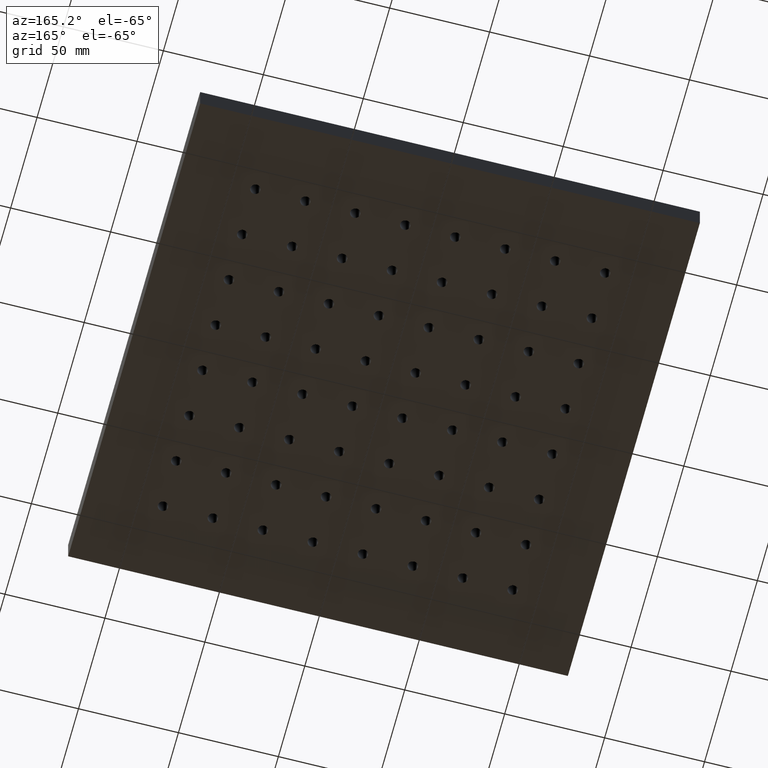
[diagram: clean part render]
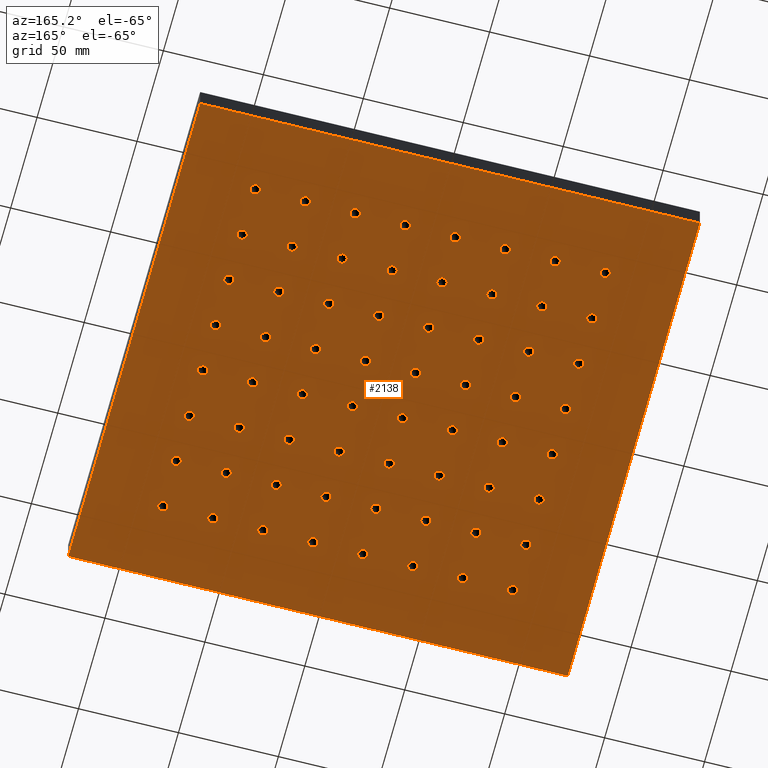
[diagram: same view with one face highlighted and labeled with its STEP entity id]
A machine part, auxiliary view. The second image highlights one B-rep face of the part: STEP entity #2138.
In plain terms, the highlighted planar face has unit normal (-0, 0, 1).
Its self-contained STEP definition (entity closure, byte-faithful):
#7 = ORIENTED_EDGE ( 'NONE', *, *, #938, .T. ) ;
#9 = VERTEX_POINT ( 'NONE', #799 ) ;
#14 = DIRECTION ( 'NONE',  ( -0.0000000000000000000, -0.0000000000000000000, 1.000000000000000000 ) ) ;
#15 = CIRCLE ( 'NONE', #1481, 2.500000000000002200 ) ;
#18 = AXIS2_PLACEMENT_3D ( 'NONE', #2996, #728, #3380 ) ;
#20 = VERTEX_POINT ( 'NONE', #3168 ) ;
#25 = DIRECTION ( 'NONE',  ( -0.0000000000000000000, -0.0000000000000000000, 1.000000000000000000 ) ) ;
#27 = CIRCLE ( 'NONE', #974, 2.500000000000002200 ) ;
#31 = DIRECTION ( 'NONE',  ( 1.000000000000000000, 0.0000000000000000000, 0.0000000000000000000 ) ) ;
#34 = EDGE_CURVE ( 'NONE', #1974, #4418, #4667, .T. ) ;
#35 = FACE_BOUND ( 'NONE', #1940, .T. ) ;
#39 = VERTEX_POINT ( 'NONE', #3783 ) ;
#50 = CARTESIAN_POINT ( 'NONE',  ( 60.00000000000002800, 37.50000000000002800, 0.0000000000000000000 ) ) ;
#52 = AXIS2_PLACEMENT_3D ( 'NONE', #321, #2507, #3745 ) ;
#62 = DIRECTION ( 'NONE',  ( -0.0000000000000000000, -0.0000000000000000000, 1.000000000000000000 ) ) ;
#65 = DIRECTION ( 'NONE',  ( -0.0000000000000000000, -0.0000000000000000000, 1.000000000000000000 ) ) ;
#68 = ORIENTED_EDGE ( 'NONE', *, *, #3366, .T. ) ;
#69 = ORIENTED_EDGE ( 'NONE', *, *, #1158, .T. ) ;
#71 = AXIS2_PLACEMENT_3D ( 'NONE', #296, #2950, #682 ) ;
#80 = CARTESIAN_POINT ( 'NONE',  ( -87.50000000000001400, -12.49999999999997000, 0.0000000000000000000 ) ) ;
#81 = CARTESIAN_POINT ( 'NONE',  ( -65.00000000000000000, 12.50000000000003200, 0.0000000000000000000 ) ) ;
#86 = EDGE_LOOP ( 'NONE', ( #1021, #3044 ) ) ;
#88 = CARTESIAN_POINT ( 'NONE',  ( -85.00000000000000000, 37.50000000000002800, 0.0000000000000000000 ) ) ;
#92 = CIRCLE ( 'NONE', #4926, 2.500000000000002200 ) ;
#93 = EDGE_CURVE ( 'NONE', #3345, #2569, #4307, .T. ) ;
#95 = DIRECTION ( 'NONE',  ( 1.000000000000000000, 0.0000000000000000000, 0.0000000000000000000 ) ) ;
#97 = FACE_BOUND ( 'NONE', #2834, .T. ) ;
#98 = EDGE_CURVE ( 'NONE', #1773, #555, #380, .T. ) ;
#104 = CARTESIAN_POINT ( 'NONE',  ( 65.00000000000001400, -87.49999999999998600, 0.0000000000000000000 ) ) ;
#109 = CIRCLE ( 'NONE', #2433, 2.500000000000002200 ) ;
#111 = DIRECTION ( 'NONE',  ( -0.0000000000000000000, -0.0000000000000000000, 1.000000000000000000 ) ) ;
#116 = AXIS2_PLACEMENT_3D ( 'NONE', #1666, #4329, #2045 ) ;
#118 = CARTESIAN_POINT ( 'NONE',  ( 62.50000000000002800, -12.49999999999997000, 0.0000000000000000000 ) ) ;
#119 = DIRECTION ( 'NONE',  ( 1.000000000000000000, 0.0000000000000000000, 0.0000000000000000000 ) ) ;
#121 = ORIENTED_EDGE ( 'NONE', *, *, #4602, .T. ) ;
#122 = CARTESIAN_POINT ( 'NONE',  ( -12.49999999999999600, -87.49999999999998600, 0.0000000000000000000 ) ) ;
#127 = VERTEX_POINT ( 'NONE', #3612 ) ;
#130 = AXIS2_PLACEMENT_3D ( 'NONE', #2651, #2351, #2681 ) ;
#132 = VERTEX_POINT ( 'NONE', #4167 ) ;
#134 = EDGE_CURVE ( 'NONE', #4409, #4473, #254, .T. ) ;
#138 = VERTEX_POINT ( 'NONE', #3754 ) ;
#145 = DIRECTION ( 'NONE',  ( -0.0000000000000000000, -0.0000000000000000000, 1.000000000000000000 ) ) ;
#149 = FACE_BOUND ( 'NONE', #736, .T. ) ;
#151 = EDGE_CURVE ( 'NONE', #1517, #4407, #2158, .T. ) ;
#156 = AXIS2_PLACEMENT_3D ( 'NONE', #1880, #1869, #1858 ) ;
#161 = DIRECTION ( 'NONE',  ( 1.000000000000000000, 0.0000000000000000000, 0.0000000000000000000 ) ) ;
#167 = VERTEX_POINT ( 'NONE', #4387 ) ;
#170 = DIRECTION ( 'NONE',  ( 1.000000000000000000, 0.0000000000000000000, 0.0000000000000000000 ) ) ;
#175 = CARTESIAN_POINT ( 'NONE',  ( 12.50000000000001100, 37.50000000000002800, 0.0000000000000000000 ) ) ;
#178 = ORIENTED_EDGE ( 'NONE', *, *, #98, .T. ) ;
#180 = EDGE_CURVE ( 'NONE', #441, #559, #4065, .T. ) ;
#187 = DIRECTION ( 'NONE',  ( -0.0000000000000000000, -0.0000000000000000000, 1.000000000000000000 ) ) ;
#188 = EDGE_CURVE ( 'NONE', #4407, #1517, #1923, .T. ) ;
#189 = AXIS2_PLACEMENT_3D ( 'NONE', #2155, #4443, #645 ) ;
#194 = AXIS2_PLACEMENT_3D ( 'NONE', #2515, #4792, #2126 ) ;
#201 = ORIENTED_EDGE ( 'NONE', *, *, #4774, .T. ) ;
#205 = AXIS2_PLACEMENT_3D ( 'NONE', #4432, #4451, #2229 ) ;
#207 = CIRCLE ( 'NONE', #3609, 2.500000000000002200 ) ;
#208 = DIRECTION ( 'NONE',  ( -0.0000000000000000000, -0.0000000000000000000, 1.000000000000000000 ) ) ;
#214 = FACE_BOUND ( 'NONE', #3946, .T. ) ;
#217 = CIRCLE ( 'NONE', #2521, 2.500000000000002200 ) ;
#218 = DIRECTION ( 'NONE',  ( 1.000000000000000000, 0.0000000000000000000, 0.0000000000000000000 ) ) ;
#232 = VERTEX_POINT ( 'NONE', #1311 ) ;
#233 = EDGE_CURVE ( 'NONE', #2786, #846, #15, .T. ) ;
#234 = DIRECTION ( 'NONE',  ( 1.000000000000000000, 0.0000000000000000000, 0.0000000000000000000 ) ) ;
#235 = CARTESIAN_POINT ( 'NONE',  ( 87.50000000000001400, 12.50000000000003200, 0.0000000000000000000 ) ) ;
#239 = AXIS2_PLACEMENT_3D ( 'NONE', #4551, #2425, #553 ) ;
#242 = ORIENTED_EDGE ( 'NONE', *, *, #2966, .T. ) ;
#243 = ORIENTED_EDGE ( 'NONE', *, *, #771, .T. ) ;
#244 = CARTESIAN_POINT ( 'NONE',  ( 124.9999999999999700, 124.9999999999999900, 0.0000000000000000000 ) ) ;
#246 = CARTESIAN_POINT ( 'NONE',  ( 85.00000000000000000, 62.50000000000005700, 0.0000000000000000000 ) ) ;
#254 = CIRCLE ( 'NONE', #4377, 2.500000000000002200 ) ;
#255 = ORIENTED_EDGE ( 'NONE', *, *, #3707, .T. ) ;
#260 = DIRECTION ( 'NONE',  ( -0.0000000000000000000, -0.0000000000000000000, 1.000000000000000000 ) ) ;
#262 = DIRECTION ( 'NONE',  ( 1.000000000000000000, 0.0000000000000000000, 0.0000000000000000000 ) ) ;
#263 = EDGE_CURVE ( 'NONE', #1218, #3757, #797, .T. ) ;
#270 = CARTESIAN_POINT ( 'NONE',  ( 37.50000000000000700, 62.50000000000005700, 0.0000000000000000000 ) ) ;
#272 = CIRCLE ( 'NONE', #4590, 2.500000000000002200 ) ;
#276 = FACE_BOUND ( 'NONE', #3058, .T. ) ;
#277 = AXIS2_PLACEMENT_3D ( 'NONE', #1493, #4157, #1870 ) ;
#284 = DIRECTION ( 'NONE',  ( -0.0000000000000000000, -0.0000000000000000000, 1.000000000000000000 ) ) ;
#287 = VERTEX_POINT ( 'NONE', #1047 ) ;
#296 = CARTESIAN_POINT ( 'NONE',  ( -62.50000000000000000, 12.50000000000003200, 0.0000000000000000000 ) ) ;
#297 = EDGE_CURVE ( 'NONE', #3926, #950, #2690, .T. ) ;
#301 = DIRECTION ( 'NONE',  ( -0.0000000000000000000, -0.0000000000000000000, 1.000000000000000000 ) ) ;
#307 = DIRECTION ( 'NONE',  ( 1.000000000000000000, 0.0000000000000000000, 0.0000000000000000000 ) ) ;
#309 = DIRECTION ( 'NONE',  ( 1.000000000000000000, 0.0000000000000000000, 0.0000000000000000000 ) ) ;
#311 = AXIS2_PLACEMENT_3D ( 'NONE', #118, #2773, #500 ) ;
#314 = VERTEX_POINT ( 'NONE', #573 ) ;
#315 = ORIENTED_EDGE ( 'NONE', *, *, #3967, .T. ) ;
#316 = AXIS2_PLACEMENT_3D ( 'NONE', #2476, #4134, #4153 ) ;
#321 = CARTESIAN_POINT ( 'NONE',  ( 12.50000000000001100, -12.49999999999997000, 0.0000000000000000000 ) ) ;
#330 = CARTESIAN_POINT ( 'NONE',  ( 15.00000000000001400, 62.50000000000005700, 0.0000000000000000000 ) ) ;
#332 = AXIS2_PLACEMENT_3D ( 'NONE', #1084, #111, #2949 ) ;
#336 = EDGE_CURVE ( 'NONE', #1420, #387, #4361, .T. ) ;
#337 = CIRCLE ( 'NONE', #4497, 2.500000000000002200 ) ;
#340 = CIRCLE ( 'NONE', #2841, 2.500000000000002200 ) ;
#344 = CIRCLE ( 'NONE', #4645, 2.500000000000002200 ) ;
#345 = DIRECTION ( 'NONE',  ( 1.000000000000000000, 0.0000000000000000000, 0.0000000000000000000 ) ) ;
#346 = CARTESIAN_POINT ( 'NONE',  ( -37.50000000000000700, -87.49999999999998600, 0.0000000000000000000 ) ) ;
#347 = CARTESIAN_POINT ( 'NONE',  ( -85.00000000000000000, 12.50000000000003200, 0.0000000000000000000 ) ) ;
#348 = CIRCLE ( 'NONE', #18, 2.500000000000002200 ) ;
#352 = CARTESIAN_POINT ( 'NONE',  ( -37.50000000000000000, -37.49999999999997900, 0.0000000000000000000 ) ) ;
#359 = DIRECTION ( 'NONE',  ( 1.000000000000000000, 0.0000000000000000000, 0.0000000000000000000 ) ) ;
#364 = DIRECTION ( 'NONE',  ( -0.0000000000000000000, -0.0000000000000000000, 1.000000000000000000 ) ) ;
#365 = DIRECTION ( 'NONE',  ( 1.000000000000000000, 0.0000000000000000000, 0.0000000000000000000 ) ) ;
#370 = VERTEX_POINT ( 'NONE', #3262 ) ;
#379 = CARTESIAN_POINT ( 'NONE',  ( -85.00000000000000000, -87.49999999999998600, 0.0000000000000000000 ) ) ;
#380 = CIRCLE ( 'NONE', #3356, 2.500000000000002200 ) ;
#382 = EDGE_LOOP ( 'NONE', ( #3338, #3936 ) ) ;
#387 = VERTEX_POINT ( 'NONE', #2608 ) ;
#395 = CIRCLE ( 'NONE', #3294, 2.500000000000002200 ) ;
#399 = CIRCLE ( 'NONE', #2942, 2.500000000000002200 ) ;
#400 = CARTESIAN_POINT ( 'NONE',  ( 65.00000000000002800, -62.49999999999997900, 0.0000000000000000000 ) ) ;
#402 = FACE_BOUND ( 'NONE', #2083, .T. ) ;
#425 = CARTESIAN_POINT ( 'NONE',  ( 37.49999999999999300, 87.50000000000005700, 0.0000000000000000000 ) ) ;
#428 = AXIS2_PLACEMENT_3D ( 'NONE', #3182, #908, #3566 ) ;
#430 = ORIENTED_EDGE ( 'NONE', *, *, #4194, .T. ) ;
#431 = ORIENTED_EDGE ( 'NONE', *, *, #3802, .T. ) ;
#438 = VERTEX_POINT ( 'NONE', #3335 ) ;
#440 = DIRECTION ( 'NONE',  ( -0.0000000000000000000, -0.0000000000000000000, 1.000000000000000000 ) ) ;
#441 = VERTEX_POINT ( 'NONE', #1425 ) ;
#448 = EDGE_CURVE ( 'NONE', #2551, #138, #488, .T. ) ;
#455 = CIRCLE ( 'NONE', #1987, 2.500000000000002200 ) ;
#456 = DIRECTION ( 'NONE',  ( -0.0000000000000000000, -0.0000000000000000000, 1.000000000000000000 ) ) ;
#457 = AXIS2_PLACEMENT_3D ( 'NONE', #1766, #4049, #1386 ) ;
#461 = DIRECTION ( 'NONE',  ( -0.0000000000000000000, -0.0000000000000000000, 1.000000000000000000 ) ) ;
#464 = EDGE_LOOP ( 'NONE', ( #2099, #3117 ) ) ;
#466 = EDGE_LOOP ( 'NONE', ( #2442, #2199 ) ) ;
#481 = ORIENTED_EDGE ( 'NONE', *, *, #1786, .T. ) ;
#483 = ORIENTED_EDGE ( 'NONE', *, *, #3165, .T. ) ;
#486 = ORIENTED_EDGE ( 'NONE', *, *, #2335, .T. ) ;
#487 = EDGE_CURVE ( 'NONE', #950, #3926, #4304, .T. ) ;
#488 = CIRCLE ( 'NONE', #1889, 2.500000000000002200 ) ;
#491 = CARTESIAN_POINT ( 'NONE',  ( 37.50000000000000700, 37.50000000000002800, 0.0000000000000000000 ) ) ;
#494 = AXIS2_PLACEMENT_3D ( 'NONE', #2382, #1232, #2262 ) ;
#500 = DIRECTION ( 'NONE',  ( 1.000000000000000000, 0.0000000000000000000, 0.0000000000000000000 ) ) ;
#509 = CIRCLE ( 'NONE', #2180, 2.500000000000002200 ) ;
#511 = FACE_BOUND ( 'NONE', #4768, .T. ) ;
#512 = EDGE_CURVE ( 'NONE', #4828, #1502, #3406, .T. ) ;
#518 = EDGE_CURVE ( 'NONE', #541, #441, #2510, .T. ) ;
#521 = DIRECTION ( 'NONE',  ( 1.000000000000000000, 0.0000000000000000000, 0.0000000000000000000 ) ) ;
#527 = ORIENTED_EDGE ( 'NONE', *, *, #1887, .T. ) ;
#529 = AXIS2_PLACEMENT_3D ( 'NONE', #4906, #2629, #359 ) ;
#538 = EDGE_LOOP ( 'NONE', ( #4239, #4231 ) ) ;
#541 = VERTEX_POINT ( 'NONE', #969 ) ;
#551 = EDGE_LOOP ( 'NONE', ( #1798, #1553 ) ) ;
#553 = DIRECTION ( 'NONE',  ( 1.000000000000000000, 0.0000000000000000000, 0.0000000000000000000 ) ) ;
#555 = VERTEX_POINT ( 'NONE', #3624 ) ;
#559 = VERTEX_POINT ( 'NONE', #1356 ) ;
#563 = DIRECTION ( 'NONE',  ( 1.000000000000000000, 0.0000000000000000000, 0.0000000000000000000 ) ) ;
#570 = CARTESIAN_POINT ( 'NONE',  ( -90.00000000000001400, 87.50000000000005700, 0.0000000000000000000 ) ) ;
#573 = CARTESIAN_POINT ( 'NONE',  ( -14.99999999999999300, -12.49999999999997000, 0.0000000000000000000 ) ) ;
#582 = CARTESIAN_POINT ( 'NONE',  ( 12.50000000000001100, 62.50000000000005700, 0.0000000000000000000 ) ) ;
#586 = CARTESIAN_POINT ( 'NONE',  ( 90.00000000000001400, 87.50000000000005700, 0.0000000000000000000 ) ) ;
#588 = CARTESIAN_POINT ( 'NONE',  ( 87.50000000000001400, -37.49999999999997900, 0.0000000000000000000 ) ) ;
#590 = DIRECTION ( 'NONE',  ( 1.000000000000000000, 0.0000000000000000000, 0.0000000000000000000 ) ) ;
#592 = DIRECTION ( 'NONE',  ( -0.0000000000000000000, -0.0000000000000000000, 1.000000000000000000 ) ) ;
#595 = DIRECTION ( 'NONE',  ( -0.0000000000000000000, -0.0000000000000000000, 1.000000000000000000 ) ) ;
#596 = DIRECTION ( 'NONE',  ( -0.0000000000000000000, -0.0000000000000000000, 1.000000000000000000 ) ) ;
#597 = CARTESIAN_POINT ( 'NONE',  ( 37.49999999999999300, -87.49999999999998600, 0.0000000000000000000 ) ) ;
#599 = EDGE_LOOP ( 'NONE', ( #3271, #654 ) ) ;
#601 = VERTEX_POINT ( 'NONE', #1924 ) ;
#616 = CARTESIAN_POINT ( 'NONE',  ( -12.49999999999999600, 87.50000000000005700, 0.0000000000000000000 ) ) ;
#619 = DIRECTION ( 'NONE',  ( 1.000000000000000000, 0.0000000000000000000, 0.0000000000000000000 ) ) ;
#628 = AXIS2_PLACEMENT_3D ( 'NONE', #582, #3231, #965 ) ;
#638 = FACE_BOUND ( 'NONE', #2489, .T. ) ;
#640 = CIRCLE ( 'NONE', #4109, 2.500000000000002200 ) ;
#645 = DIRECTION ( 'NONE',  ( 1.000000000000000000, 0.0000000000000000000, 0.0000000000000000000 ) ) ;
#654 = ORIENTED_EDGE ( 'NONE', *, *, #2737, .T. ) ;
#657 = EDGE_CURVE ( 'NONE', #4245, #2253, #3563, .T. ) ;
#662 = AXIS2_PLACEMENT_3D ( 'NONE', #3280, #3662, #1394 ) ;
#666 = ORIENTED_EDGE ( 'NONE', *, *, #1918, .T. ) ;
#669 = VERTEX_POINT ( 'NONE', #4119 ) ;
#674 = CARTESIAN_POINT ( 'NONE',  ( -85.00000000000000000, 87.50000000000005700, 0.0000000000000000000 ) ) ;
#681 = DIRECTION ( 'NONE',  ( -0.0000000000000000000, -0.0000000000000000000, 1.000000000000000000 ) ) ;
#682 = DIRECTION ( 'NONE',  ( 1.000000000000000000, 0.0000000000000000000, 0.0000000000000000000 ) ) ;
#684 = DIRECTION ( 'NONE',  ( 1.000000000000000000, 0.0000000000000000000, 0.0000000000000000000 ) ) ;
#689 = EDGE_LOOP ( 'NONE', ( #4601, #2567 ) ) ;
#690 = EDGE_CURVE ( 'NONE', #2929, #1496, #1429, .T. ) ;
#691 = CARTESIAN_POINT ( 'NONE',  ( -12.49999999999999100, 37.50000000000002800, 0.0000000000000000000 ) ) ;
#692 = CIRCLE ( 'NONE', #3531, 2.500000000000002200 ) ;
#695 = ORIENTED_EDGE ( 'NONE', *, *, #2296, .T. ) ;
#697 = CIRCLE ( 'NONE', #4493, 2.500000000000002200 ) ;
#701 = CIRCLE ( 'NONE', #428, 2.500000000000002200 ) ;
#707 = CARTESIAN_POINT ( 'NONE',  ( -9.999999999999994700, -87.49999999999998600, 0.0000000000000000000 ) ) ;
#712 = EDGE_CURVE ( 'NONE', #794, #1325, #2324, .T. ) ;
#714 = CARTESIAN_POINT ( 'NONE',  ( 12.49999999999999600, 87.50000000000005700, 0.0000000000000000000 ) ) ;
#723 = DIRECTION ( 'NONE',  ( 1.000000000000000000, 0.0000000000000000000, 0.0000000000000000000 ) ) ;
#728 = DIRECTION ( 'NONE',  ( -0.0000000000000000000, -0.0000000000000000000, 1.000000000000000000 ) ) ;
#729 = AXIS2_PLACEMENT_3D ( 'NONE', #691, #3348, #1076 ) ;
#733 = AXIS2_PLACEMENT_3D ( 'NONE', #1304, #596, #307 ) ;
#736 = EDGE_LOOP ( 'NONE', ( #3318, #2517 ) ) ;
#741 = ORIENTED_EDGE ( 'NONE', *, *, #2977, .T. ) ;
#746 = EDGE_LOOP ( 'NONE', ( #4423, #4073 ) ) ;
#751 = VERTEX_POINT ( 'NONE', #4905 ) ;
#752 = EDGE_CURVE ( 'NONE', #3757, #1218, #4111, .T. ) ;
#759 = FACE_BOUND ( 'NONE', #889, .T. ) ;
#763 = DIRECTION ( 'NONE',  ( 1.000000000000000000, 0.0000000000000000000, 0.0000000000000000000 ) ) ;
#768 = CIRCLE ( 'NONE', #4517, 2.500000000000002200 ) ;
#771 = EDGE_CURVE ( 'NONE', #4702, #4721, #2972, .T. ) ;
#780 = EDGE_CURVE ( 'NONE', #2214, #1859, #4874, .T. ) ;
#781 = AXIS2_PLACEMENT_3D ( 'NONE', #2336, #2671, #3619 ) ;
#784 = CARTESIAN_POINT ( 'NONE',  ( 62.50000000000001400, -87.49999999999998600, 0.0000000000000000000 ) ) ;
#785 = EDGE_CURVE ( 'NONE', #4418, #1974, #948, .T. ) ;
#788 = ORIENTED_EDGE ( 'NONE', *, *, #3154, .T. ) ;
#792 = VERTEX_POINT ( 'NONE', #3927 ) ;
#794 = VERTEX_POINT ( 'NONE', #4021 ) ;
#797 = CIRCLE ( 'NONE', #1982, 2.500000000000002200 ) ;
#799 = CARTESIAN_POINT ( 'NONE',  ( -85.00000000000000000, -62.49999999999997900, 0.0000000000000000000 ) ) ;
#800 = DIRECTION ( 'NONE',  ( -0.0000000000000000000, -0.0000000000000000000, 1.000000000000000000 ) ) ;
#802 = CARTESIAN_POINT ( 'NONE',  ( -87.50000000000001400, -37.49999999999997900, 0.0000000000000000000 ) ) ;
#804 = ORIENTED_EDGE ( 'NONE', *, *, #3764, .T. ) ;
#808 = VERTEX_POINT ( 'NONE', #3773 ) ;
#811 = CIRCLE ( 'NONE', #2755, 2.500000000000002200 ) ;
#821 = FACE_BOUND ( 'NONE', #2042, .T. ) ;
#824 = CIRCLE ( 'NONE', #4607, 2.500000000000002200 ) ;
#827 = AXIS2_PLACEMENT_3D ( 'NONE', #2577, #3771, #4784 ) ;
#837 = CARTESIAN_POINT ( 'NONE',  ( -60.00000000000000000, -37.49999999999997900, 0.0000000000000000000 ) ) ;
#840 = EDGE_CURVE ( 'NONE', #1100, #1602, #4104, .T. ) ;
#843 = VERTEX_POINT ( 'NONE', #3268 ) ;
#844 = AXIS2_PLACEMENT_3D ( 'NONE', #4232, #1910, #4201 ) ;
#845 = EDGE_CURVE ( 'NONE', #3525, #843, #1194, .T. ) ;
#846 = VERTEX_POINT ( 'NONE', #3263 ) ;
#853 = DIRECTION ( 'NONE',  ( -0.0000000000000000000, -0.0000000000000000000, 1.000000000000000000 ) ) ;
#855 = CARTESIAN_POINT ( 'NONE',  ( -12.49999999999999600, -87.49999999999998600, 0.0000000000000000000 ) ) ;
#860 = CARTESIAN_POINT ( 'NONE',  ( 90.00000000000001400, 12.50000000000003200, 0.0000000000000000000 ) ) ;
#866 = EDGE_CURVE ( 'NONE', #3959, #127, #3087, .T. ) ;
#871 = FACE_BOUND ( 'NONE', #1497, .T. ) ;
#872 = DIRECTION ( 'NONE',  ( 1.000000000000000000, 0.0000000000000000000, 0.0000000000000000000 ) ) ;
#874 = CARTESIAN_POINT ( 'NONE',  ( -65.00000000000000000, -12.49999999999997000, 0.0000000000000000000 ) ) ;
#875 = DIRECTION ( 'NONE',  ( 1.000000000000000000, 0.0000000000000000000, 0.0000000000000000000 ) ) ;
#876 = CIRCLE ( 'NONE', #3084, 2.500000000000002200 ) ;
#883 = AXIS2_PLACEMENT_3D ( 'NONE', #935, #3591, #1324 ) ;
#888 = ORIENTED_EDGE ( 'NONE', *, *, #712, .T. ) ;
#889 = EDGE_LOOP ( 'NONE', ( #3618, #2920 ) ) ;
#891 = ORIENTED_EDGE ( 'NONE', *, *, #4344, .T. ) ;
#896 = ORIENTED_EDGE ( 'NONE', *, *, #151, .T. ) ;
#903 = VERTEX_POINT ( 'NONE', #2445 ) ;
#904 = AXIS2_PLACEMENT_3D ( 'NONE', #3354, #1085, #3734 ) ;
#908 = DIRECTION ( 'NONE',  ( -0.0000000000000000000, -0.0000000000000000000, 1.000000000000000000 ) ) ;
#926 = CIRCLE ( 'NONE', #1175, 2.500000000000002200 ) ;
#929 = AXIS2_PLACEMENT_3D ( 'NONE', #1221, #1172, #1124 ) ;
#930 = FACE_BOUND ( 'NONE', #4439, .T. ) ;
#935 = CARTESIAN_POINT ( 'NONE',  ( 62.50000000000002800, -62.49999999999997900, 0.0000000000000000000 ) ) ;
#938 = EDGE_CURVE ( 'NONE', #127, #3959, #4870, .T. ) ;
#944 = DIRECTION ( 'NONE',  ( -0.0000000000000000000, -0.0000000000000000000, 1.000000000000000000 ) ) ;
#945 = CARTESIAN_POINT ( 'NONE',  ( -40.00000000000000000, -12.49999999999997000, 0.0000000000000000000 ) ) ;
#948 = CIRCLE ( 'NONE', #1543, 2.500000000000002200 ) ;
#950 = VERTEX_POINT ( 'NONE', #2231 ) ;
#952 = EDGE_CURVE ( 'NONE', #4649, #3515, #3743, .T. ) ;
#956 = ORIENTED_EDGE ( 'NONE', *, *, #2563, .T. ) ;
#960 = AXIS2_PLACEMENT_3D ( 'NONE', #4422, #3814, #763 ) ;
#961 = CARTESIAN_POINT ( 'NONE',  ( -14.99999999999999300, -37.49999999999997900, 0.0000000000000000000 ) ) ;
#965 = DIRECTION ( 'NONE',  ( 1.000000000000000000, 0.0000000000000000000, 0.0000000000000000000 ) ) ;
#969 = CARTESIAN_POINT ( 'NONE',  ( -125.0000000000000000, -125.0000000000000000, 0.0000000000000000000 ) ) ;
#971 = CARTESIAN_POINT ( 'NONE',  ( -62.50000000000000000, 87.50000000000005700, 0.0000000000000000000 ) ) ;
#974 = AXIS2_PLACEMENT_3D ( 'NONE', #1171, #3842, #3421 ) ;
#980 = DIRECTION ( 'NONE',  ( 1.000000000000000000, 0.0000000000000000000, 0.0000000000000000000 ) ) ;
#984 = CIRCLE ( 'NONE', #2284, 2.500000000000002200 ) ;
#987 = FACE_BOUND ( 'NONE', #4404, .T. ) ;
#1013 = CARTESIAN_POINT ( 'NONE',  ( -15.00000000000000000, -87.49999999999998600, 0.0000000000000000000 ) ) ;
#1021 = ORIENTED_EDGE ( 'NONE', *, *, #4821, .T. ) ;
#1027 = CARTESIAN_POINT ( 'NONE',  ( 62.50000000000002800, 37.50000000000002800, 0.0000000000000000000 ) ) ;
#1029 = DIRECTION ( 'NONE',  ( 1.000000000000000000, 0.0000000000000000000, 0.0000000000000000000 ) ) ;
#1031 = EDGE_CURVE ( 'NONE', #1716, #3207, #3616, .T. ) ;
#1033 = VECTOR ( 'NONE', #2206, 1000.000000000000000 ) ;
#1037 = CARTESIAN_POINT ( 'NONE',  ( 10.00000000000000900, 62.50000000000005700, 0.0000000000000000000 ) ) ;
#1041 = VERTEX_POINT ( 'NONE', #1037 ) ;
#1047 = CARTESIAN_POINT ( 'NONE',  ( 34.99999999999999300, -87.49999999999998600, 0.0000000000000000000 ) ) ;
#1052 = CARTESIAN_POINT ( 'NONE',  ( 10.00000000000000900, -62.49999999999997900, 0.0000000000000000000 ) ) ;
#1054 = CARTESIAN_POINT ( 'NONE',  ( 39.99999999999999300, 87.50000000000005700, 0.0000000000000000000 ) ) ;
#1056 = CARTESIAN_POINT ( 'NONE',  ( -62.50000000000000000, 37.50000000000002800, 0.0000000000000000000 ) ) ;
#1057 = FACE_BOUND ( 'NONE', #1751, .T. ) ;
#1063 = CIRCLE ( 'NONE', #1903, 2.500000000000002200 ) ;
#1066 = CIRCLE ( 'NONE', #2621, 2.500000000000002200 ) ;
#1075 = VERTEX_POINT ( 'NONE', #1345 ) ;
#1076 = DIRECTION ( 'NONE',  ( 1.000000000000000000, 0.0000000000000000000, 0.0000000000000000000 ) ) ;
#1084 = CARTESIAN_POINT ( 'NONE',  ( -12.49999999999999100, 12.50000000000003200, 0.0000000000000000000 ) ) ;
#1085 = DIRECTION ( 'NONE',  ( -0.0000000000000000000, -0.0000000000000000000, 1.000000000000000000 ) ) ;
#1100 = VERTEX_POINT ( 'NONE', #674 ) ;
#1112 = VERTEX_POINT ( 'NONE', #4891 ) ;
#1118 = DIRECTION ( 'NONE',  ( -0.0000000000000000000, -0.0000000000000000000, 1.000000000000000000 ) ) ;
#1120 = CIRCLE ( 'NONE', #4259, 2.500000000000002200 ) ;
#1121 = FACE_BOUND ( 'NONE', #4924, .T. ) ;
#1124 = DIRECTION ( 'NONE',  ( 1.000000000000000000, 0.0000000000000000000, 0.0000000000000000000 ) ) ;
#1141 = VERTEX_POINT ( 'NONE', #707 ) ;
#1144 = ORIENTED_EDGE ( 'NONE', *, *, #3323, .T. ) ;
#1146 = ORIENTED_EDGE ( 'NONE', *, *, #512, .T. ) ;
#1147 = DIRECTION ( 'NONE',  ( 1.000000000000000000, 0.0000000000000000000, 0.0000000000000000000 ) ) ;
#1149 = DIRECTION ( 'NONE',  ( 1.000000000000000000, 0.0000000000000000000, 0.0000000000000000000 ) ) ;
#1150 = CARTESIAN_POINT ( 'NONE',  ( 10.00000000000000900, 37.50000000000002800, 0.0000000000000000000 ) ) ;
#1158 = EDGE_CURVE ( 'NONE', #669, #3652, #3794, .T. ) ;
#1171 = CARTESIAN_POINT ( 'NONE',  ( -87.50000000000001400, 62.50000000000005700, 0.0000000000000000000 ) ) ;
#1172 = DIRECTION ( 'NONE',  ( -0.0000000000000000000, -0.0000000000000000000, 1.000000000000000000 ) ) ;
#1173 = DIRECTION ( 'NONE',  ( -0.0000000000000000000, -0.0000000000000000000, 1.000000000000000000 ) ) ;
#1175 = AXIS2_PLACEMENT_3D ( 'NONE', #2918, #3301, #1029 ) ;
#1177 = FACE_BOUND ( 'NONE', #4202, .T. ) ;
#1183 = EDGE_LOOP ( 'NONE', ( #1265, #1144 ) ) ;
#1192 = EDGE_CURVE ( 'NONE', #1502, #4828, #4694, .T. ) ;
#1194 = CIRCLE ( 'NONE', #2302, 2.500000000000002200 ) ;
#1200 = EDGE_CURVE ( 'NONE', #370, #2893, #768, .T. ) ;
#1202 = EDGE_CURVE ( 'NONE', #1657, #4866, #1654, .T. ) ;
#1209 = ORIENTED_EDGE ( 'NONE', *, *, #2779, .T. ) ;
#1216 = CARTESIAN_POINT ( 'NONE',  ( -40.00000000000000000, -37.49999999999997900, 0.0000000000000000000 ) ) ;
#1218 = VERTEX_POINT ( 'NONE', #1533 ) ;
#1220 = EDGE_CURVE ( 'NONE', #1789, #4121, #2546, .T. ) ;
#1221 = CARTESIAN_POINT ( 'NONE',  ( 87.50000000000001400, 37.50000000000002800, 0.0000000000000000000 ) ) ;
#1223 = VERTEX_POINT ( 'NONE', #3120 ) ;
#1227 = CARTESIAN_POINT ( 'NONE',  ( 62.50000000000002800, 62.50000000000005700, 0.0000000000000000000 ) ) ;
#1228 = DIRECTION ( 'NONE',  ( 1.000000000000000000, 0.0000000000000000000, 0.0000000000000000000 ) ) ;
#1231 = CIRCLE ( 'NONE', #827, 2.500000000000002200 ) ;
#1232 = DIRECTION ( 'NONE',  ( -0.0000000000000000000, -0.0000000000000000000, 1.000000000000000000 ) ) ;
#1241 = DIRECTION ( 'NONE',  ( 1.000000000000000000, 0.0000000000000000000, 0.0000000000000000000 ) ) ;
#1243 = FACE_OUTER_BOUND ( 'NONE', #1680, .T. ) ;
#1247 = VERTEX_POINT ( 'NONE', #4583 ) ;
#1249 = CARTESIAN_POINT ( 'NONE',  ( 90.00000000000001400, 37.50000000000002800, 0.0000000000000000000 ) ) ;
#1253 = VERTEX_POINT ( 'NONE', #1430 ) ;
#1265 = ORIENTED_EDGE ( 'NONE', *, *, #2233, .T. ) ;
#1273 = AXIS2_PLACEMENT_3D ( 'NONE', #3904, #4293, #3889 ) ;
#1288 = CARTESIAN_POINT ( 'NONE',  ( 34.99999999999999300, 87.50000000000005700, 0.0000000000000000000 ) ) ;
#1289 = AXIS2_PLACEMENT_3D ( 'NONE', #1518, #4811, #1410 ) ;
#1293 = FACE_BOUND ( 'NONE', #3440, .T. ) ;
#1294 = CARTESIAN_POINT ( 'NONE',  ( 87.50000000000001400, -62.49999999999997900, 0.0000000000000000000 ) ) ;
#1300 = CIRCLE ( 'NONE', #1392, 2.500000000000002200 ) ;
#1304 = CARTESIAN_POINT ( 'NONE',  ( -87.50000000000001400, -62.49999999999997900, 0.0000000000000000000 ) ) ;
#1307 = ORIENTED_EDGE ( 'NONE', *, *, #134, .T. ) ;
#1311 = CARTESIAN_POINT ( 'NONE',  ( 39.99999999999999300, -87.49999999999998600, 0.0000000000000000000 ) ) ;
#1313 = EDGE_CURVE ( 'NONE', #4368, #3545, #3196, .T. ) ;
#1324 = DIRECTION ( 'NONE',  ( 1.000000000000000000, 0.0000000000000000000, 0.0000000000000000000 ) ) ;
#1325 = VERTEX_POINT ( 'NONE', #3039 ) ;
#1336 = DIRECTION ( 'NONE',  ( -0.0000000000000000000, -0.0000000000000000000, 1.000000000000000000 ) ) ;
#1337 = VERTEX_POINT ( 'NONE', #400 ) ;
#1345 = CARTESIAN_POINT ( 'NONE',  ( -60.00000000000000000, 37.50000000000002800, 0.0000000000000000000 ) ) ;
#1348 = CARTESIAN_POINT ( 'NONE',  ( 15.00000000000001400, 12.50000000000003200, 0.0000000000000000000 ) ) ;
#1349 = EDGE_CURVE ( 'NONE', #2085, #4495, #1066, .T. ) ;
#1353 = CIRCLE ( 'NONE', #277, 2.500000000000002200 ) ;
#1356 = CARTESIAN_POINT ( 'NONE',  ( 124.9999999999999700, 124.9999999999999900, 0.0000000000000000000 ) ) ;
#1357 = CARTESIAN_POINT ( 'NONE',  ( 35.00000000000000000, 12.50000000000003200, 0.0000000000000000000 ) ) ;
#1367 = DIRECTION ( 'NONE',  ( -0.0000000000000000000, -0.0000000000000000000, 1.000000000000000000 ) ) ;
#1370 = CARTESIAN_POINT ( 'NONE',  ( -15.00000000000000000, 87.50000000000005700, 0.0000000000000000000 ) ) ;
#1371 = ORIENTED_EDGE ( 'NONE', *, *, #4918, .T. ) ;
#1372 = ORIENTED_EDGE ( 'NONE', *, *, #2039, .T. ) ;
#1380 = CARTESIAN_POINT ( 'NONE',  ( -34.99999999999999300, 12.50000000000003200, 0.0000000000000000000 ) ) ;
#1386 = DIRECTION ( 'NONE',  ( 1.000000000000000000, 0.0000000000000000000, 0.0000000000000000000 ) ) ;
#1392 = AXIS2_PLACEMENT_3D ( 'NONE', #3999, #1714, #4382 ) ;
#1394 = DIRECTION ( 'NONE',  ( 1.000000000000000000, 0.0000000000000000000, 0.0000000000000000000 ) ) ;
#1405 = DIRECTION ( 'NONE',  ( 1.000000000000000000, 0.0000000000000000000, 0.0000000000000000000 ) ) ;
#1407 = EDGE_CURVE ( 'NONE', #4802, #4199, #3738, .T. ) ;
#1408 = FACE_BOUND ( 'NONE', #86, .T. ) ;
#1410 = DIRECTION ( 'NONE',  ( 1.000000000000000000, 0.0000000000000000000, 0.0000000000000000000 ) ) ;
#1411 = AXIS2_PLACEMENT_3D ( 'NONE', #4884, #1564, #1597 ) ;
#1418 = CARTESIAN_POINT ( 'NONE',  ( -125.0000000000000300, 124.9999999999999900, 0.0000000000000000000 ) ) ;
#1419 = AXIS2_PLACEMENT_3D ( 'NONE', #3752, #1478, #4145 ) ;
#1420 = VERTEX_POINT ( 'NONE', #3107 ) ;
#1425 = CARTESIAN_POINT ( 'NONE',  ( 125.0000000000000000, -125.0000000000000000, 0.0000000000000000000 ) ) ;
#1429 = CIRCLE ( 'NONE', #1289, 2.500000000000002200 ) ;
#1430 = CARTESIAN_POINT ( 'NONE',  ( -14.99999999999999300, 62.50000000000005700, 0.0000000000000000000 ) ) ;
#1436 = DIRECTION ( 'NONE',  ( 1.000000000000000000, 0.0000000000000000000, 0.0000000000000000000 ) ) ;
#1444 = AXIS2_PLACEMENT_3D ( 'NONE', #4556, #2458, #2597 ) ;
#1448 = DIRECTION ( 'NONE',  ( 1.000000000000000000, 0.0000000000000000000, 0.0000000000000000000 ) ) ;
#1450 = PLANE ( 'NONE',  #457 ) ;
#1460 = VERTEX_POINT ( 'NONE', #860 ) ;
#1464 = CIRCLE ( 'NONE', #116, 2.500000000000002200 ) ;
#1476 = CIRCLE ( 'NONE', #3101, 2.500000000000002200 ) ;
#1478 = DIRECTION ( 'NONE',  ( -0.0000000000000000000, -0.0000000000000000000, 1.000000000000000000 ) ) ;
#1480 = CIRCLE ( 'NONE', #4709, 2.500000000000002200 ) ;
#1481 = AXIS2_PLACEMENT_3D ( 'NONE', #588, #3312, #3274 ) ;
#1486 = CARTESIAN_POINT ( 'NONE',  ( 35.00000000000000000, -37.49999999999997900, 0.0000000000000000000 ) ) ;
#1493 = CARTESIAN_POINT ( 'NONE',  ( 87.50000000000001400, -62.49999999999997900, 0.0000000000000000000 ) ) ;
#1496 = VERTEX_POINT ( 'NONE', #3921 ) ;
#1497 = EDGE_LOOP ( 'NONE', ( #3002, #4356 ) ) ;
#1501 = CARTESIAN_POINT ( 'NONE',  ( -62.50000000000000000, -12.49999999999997000, 0.0000000000000000000 ) ) ;
#1502 = VERTEX_POINT ( 'NONE', #3152 ) ;
#1511 = AXIS2_PLACEMENT_3D ( 'NONE', #2632, #364, #1827 ) ;
#1515 = VERTEX_POINT ( 'NONE', #1370 ) ;
#1516 = EDGE_CURVE ( 'NONE', #3515, #4649, #4281, .T. ) ;
#1517 = VERTEX_POINT ( 'NONE', #2876 ) ;
#1518 = CARTESIAN_POINT ( 'NONE',  ( 12.50000000000001100, -62.49999999999997900, 0.0000000000000000000 ) ) ;
#1526 = DIRECTION ( 'NONE',  ( -0.0000000000000000000, -0.0000000000000000000, 1.000000000000000000 ) ) ;
#1529 = DIRECTION ( 'NONE',  ( 1.000000000000000000, 0.0000000000000000000, 0.0000000000000000000 ) ) ;
#1530 = CARTESIAN_POINT ( 'NONE',  ( -65.00000000000000000, 87.50000000000005700, 0.0000000000000000000 ) ) ;
#1533 = CARTESIAN_POINT ( 'NONE',  ( -85.00000000000000000, -12.49999999999997000, 0.0000000000000000000 ) ) ;
#1534 = FACE_BOUND ( 'NONE', #3687, .T. ) ;
#1538 = EDGE_CURVE ( 'NONE', #387, #1420, #3140, .T. ) ;
#1541 = CARTESIAN_POINT ( 'NONE',  ( 37.50000000000000700, 12.50000000000003200, 0.0000000000000000000 ) ) ;
#1543 = AXIS2_PLACEMENT_3D ( 'NONE', #4005, #3991, #3973 ) ;
#1548 = EDGE_CURVE ( 'NONE', #1253, #4054, #217, .T. ) ;
#1553 = ORIENTED_EDGE ( 'NONE', *, *, #3097, .T. ) ;
#1556 = VERTEX_POINT ( 'NONE', #874 ) ;
#1558 = AXIS2_PLACEMENT_3D ( 'NONE', #2298, #14, #2672 ) ;
#1562 = ORIENTED_EDGE ( 'NONE', *, *, #3667, .T. ) ;
#1564 = DIRECTION ( 'NONE',  ( -0.0000000000000000000, -0.0000000000000000000, 1.000000000000000000 ) ) ;
#1569 = DIRECTION ( 'NONE',  ( -0.0000000000000000000, -0.0000000000000000000, 1.000000000000000000 ) ) ;
#1583 = DIRECTION ( 'NONE',  ( -0.0000000000000000000, -0.0000000000000000000, 1.000000000000000000 ) ) ;
#1585 = EDGE_CURVE ( 'NONE', #555, #1773, #1891, .T. ) ;
#1591 = CARTESIAN_POINT ( 'NONE',  ( -87.50000000000001400, 37.50000000000002800, 0.0000000000000000000 ) ) ;
#1594 = VERTEX_POINT ( 'NONE', #1357 ) ;
#1597 = DIRECTION ( 'NONE',  ( 1.000000000000000000, 0.0000000000000000000, 0.0000000000000000000 ) ) ;
#1602 = VERTEX_POINT ( 'NONE', #570 ) ;
#1604 = DIRECTION ( 'NONE',  ( -0.0000000000000000000, -0.0000000000000000000, 1.000000000000000000 ) ) ;
#1606 = EDGE_LOOP ( 'NONE', ( #486, #3226 ) ) ;
#1609 = DIRECTION ( 'NONE',  ( 1.000000000000000000, 0.0000000000000000000, 0.0000000000000000000 ) ) ;
#1610 = CARTESIAN_POINT ( 'NONE',  ( 87.50000000000001400, 62.50000000000005700, 0.0000000000000000000 ) ) ;
#1635 = EDGE_CURVE ( 'NONE', #3293, #4824, #3666, .T. ) ;
#1637 = ORIENTED_EDGE ( 'NONE', *, *, #1845, .T. ) ;
#1641 = EDGE_LOOP ( 'NONE', ( #481, #4431 ) ) ;
#1642 = CIRCLE ( 'NONE', #4893, 2.500000000000002200 ) ;
#1645 = CIRCLE ( 'NONE', #2438, 2.500000000000002200 ) ;
#1647 = FACE_BOUND ( 'NONE', #2033, .T. ) ;
#1650 = DIRECTION ( 'NONE',  ( -0.0000000000000000000, -0.0000000000000000000, 1.000000000000000000 ) ) ;
#1653 = ORIENTED_EDGE ( 'NONE', *, *, #2525, .T. ) ;
#1654 = CIRCLE ( 'NONE', #332, 2.500000000000002200 ) ;
#1655 = DIRECTION ( 'NONE',  ( -0.0000000000000000000, -0.0000000000000000000, 1.000000000000000000 ) ) ;
#1657 = VERTEX_POINT ( 'NONE', #3295 ) ;
#1661 = EDGE_CURVE ( 'NONE', #4473, #4409, #4690, .T. ) ;
#1664 = AXIS2_PLACEMENT_3D ( 'NONE', #3089, #25, #262 ) ;
#1666 = CARTESIAN_POINT ( 'NONE',  ( -37.50000000000000000, -12.49999999999997000, 0.0000000000000000000 ) ) ;
#1668 = VERTEX_POINT ( 'NONE', #2560 ) ;
#1670 = DIRECTION ( 'NONE',  ( 1.000000000000000000, 0.0000000000000000000, 0.0000000000000000000 ) ) ;
#1673 = CARTESIAN_POINT ( 'NONE',  ( 40.00000000000000700, -37.49999999999997900, 0.0000000000000000000 ) ) ;
#1676 = AXIS2_PLACEMENT_3D ( 'NONE', #2622, #2933, #2227 ) ;
#1680 = EDGE_LOOP ( 'NONE', ( #3181, #4699, #4822, #2290 ) ) ;
#1683 = CARTESIAN_POINT ( 'NONE',  ( 15.00000000000001400, -12.49999999999997000, 0.0000000000000000000 ) ) ;
#1685 = CARTESIAN_POINT ( 'NONE',  ( 10.00000000000000900, -12.49999999999997000, 0.0000000000000000000 ) ) ;
#1707 = EDGE_LOOP ( 'NONE', ( #3806, #3674 ) ) ;
#1708 = LINE ( 'NONE', #3370, #2602 ) ;
#1714 = DIRECTION ( 'NONE',  ( -0.0000000000000000000, -0.0000000000000000000, 1.000000000000000000 ) ) ;
#1716 = VERTEX_POINT ( 'NONE', #2991 ) ;
#1719 = CARTESIAN_POINT ( 'NONE',  ( -62.50000000000000000, -62.49999999999997900, 0.0000000000000000000 ) ) ;
#1735 = CARTESIAN_POINT ( 'NONE',  ( -37.50000000000000000, -37.49999999999997900, 0.0000000000000000000 ) ) ;
#1740 = CARTESIAN_POINT ( 'NONE',  ( -65.00000000000000000, -62.49999999999997900, 0.0000000000000000000 ) ) ;
#1751 = EDGE_LOOP ( 'NONE', ( #527, #4621 ) ) ;
#1762 = FACE_BOUND ( 'NONE', #3864, .T. ) ;
#1763 = EDGE_CURVE ( 'NONE', #2165, #314, #4328, .T. ) ;
#1766 = CARTESIAN_POINT ( 'NONE',  ( 0.0000000000000000000, 0.0000000000000000000, 0.0000000000000000000 ) ) ;
#1767 = AXIS2_PLACEMENT_3D ( 'NONE', #3506, #3784, #1149 ) ;
#1773 = VERTEX_POINT ( 'NONE', #1530 ) ;
#1786 = EDGE_CURVE ( 'NONE', #3207, #1716, #4285, .T. ) ;
#1789 = VERTEX_POINT ( 'NONE', #1486 ) ;
#1790 = AXIS2_PLACEMENT_3D ( 'NONE', #3242, #3227, #3215 ) ;
#1791 = ORIENTED_EDGE ( 'NONE', *, *, #3580, .T. ) ;
#1793 = EDGE_LOOP ( 'NONE', ( #4036, #3710 ) ) ;
#1798 = ORIENTED_EDGE ( 'NONE', *, *, #448, .T. ) ;
#1817 = CARTESIAN_POINT ( 'NONE',  ( 87.50000000000001400, 37.50000000000002800, 0.0000000000000000000 ) ) ;
#1818 = VERTEX_POINT ( 'NONE', #1150 ) ;
#1821 = CIRCLE ( 'NONE', #2505, 2.500000000000002200 ) ;
#1824 = EDGE_CURVE ( 'NONE', #4007, #3208, #109, .T. ) ;
#1827 = DIRECTION ( 'NONE',  ( 1.000000000000000000, 0.0000000000000000000, 0.0000000000000000000 ) ) ;
#1828 = CARTESIAN_POINT ( 'NONE',  ( -90.00000000000001400, -87.49999999999998600, 0.0000000000000000000 ) ) ;
#1830 = AXIS2_PLACEMENT_3D ( 'NONE', #3469, #3488, #2698 ) ;
#1831 = FACE_BOUND ( 'NONE', #2462, .T. ) ;
#1833 = AXIS2_PLACEMENT_3D ( 'NONE', #1610, #3503, #1228 ) ;
#1834 = DIRECTION ( 'NONE',  ( -0.0000000000000000000, -0.0000000000000000000, 1.000000000000000000 ) ) ;
#1835 = CIRCLE ( 'NONE', #4343, 2.500000000000002200 ) ;
#1836 = EDGE_LOOP ( 'NONE', ( #1637, #3337 ) ) ;
#1841 = AXIS2_PLACEMENT_3D ( 'NONE', #2434, #145, #2804 ) ;
#1842 = EDGE_LOOP ( 'NONE', ( #430, #695 ) ) ;
#1845 = EDGE_CURVE ( 'NONE', #3681, #2899, #2124, .T. ) ;
#1848 = DIRECTION ( 'NONE',  ( 1.000000000000000000, 0.0000000000000000000, 0.0000000000000000000 ) ) ;
#1858 = DIRECTION ( 'NONE',  ( 1.000000000000000000, 0.0000000000000000000, 0.0000000000000000000 ) ) ;
#1859 = VERTEX_POINT ( 'NONE', #3302 ) ;
#1861 = DIRECTION ( 'NONE',  ( -1.000000000000000000, -0.0000000000000000000, -0.0000000000000000000 ) ) ;
#1864 = ORIENTED_EDGE ( 'NONE', *, *, #3286, .T. ) ;
#1869 = DIRECTION ( 'NONE',  ( -0.0000000000000000000, -0.0000000000000000000, 1.000000000000000000 ) ) ;
#1870 = DIRECTION ( 'NONE',  ( 1.000000000000000000, 0.0000000000000000000, 0.0000000000000000000 ) ) ;
#1877 = DIRECTION ( 'NONE',  ( -0.0000000000000000000, -0.0000000000000000000, 1.000000000000000000 ) ) ;
#1880 = CARTESIAN_POINT ( 'NONE',  ( -37.50000000000000700, -87.49999999999998600, 0.0000000000000000000 ) ) ;
#1884 = CIRCLE ( 'NONE', #4520, 2.500000000000002200 ) ;
#1885 = FACE_BOUND ( 'NONE', #1836, .T. ) ;
#1887 = EDGE_CURVE ( 'NONE', #167, #1223, #2056, .T. ) ;
#1889 = AXIS2_PLACEMENT_3D ( 'NONE', #4105, #4460, #4915 ) ;
#1891 = CIRCLE ( 'NONE', #2771, 2.500000000000002200 ) ;
#1903 = AXIS2_PLACEMENT_3D ( 'NONE', #3637, #1367, #4027 ) ;
#1905 = DIRECTION ( 'NONE',  ( -0.0000000000000000000, -0.0000000000000000000, 1.000000000000000000 ) ) ;
#1910 = DIRECTION ( 'NONE',  ( -0.0000000000000000000, -0.0000000000000000000, 1.000000000000000000 ) ) ;
#1918 = EDGE_CURVE ( 'NONE', #20, #751, #3971, .T. ) ;
#1921 = DIRECTION ( 'NONE',  ( 1.000000000000000000, 0.0000000000000000000, 0.0000000000000000000 ) ) ;
#1922 = AXIS2_PLACEMENT_3D ( 'NONE', #1817, #1834, #1448 ) ;
#1923 = CIRCLE ( 'NONE', #960, 2.500000000000002200 ) ;
#1924 = CARTESIAN_POINT ( 'NONE',  ( 65.00000000000002800, 37.50000000000002800, 0.0000000000000000000 ) ) ;
#1927 = CARTESIAN_POINT ( 'NONE',  ( 65.00000000000002800, -37.49999999999997900, 0.0000000000000000000 ) ) ;
#1932 = EDGE_LOOP ( 'NONE', ( #3446, #1562 ) ) ;
#1940 = EDGE_LOOP ( 'NONE', ( #4817, #3202 ) ) ;
#1949 = FACE_BOUND ( 'NONE', #3420, .T. ) ;
#1969 = DIRECTION ( 'NONE',  ( 1.000000000000000000, 0.0000000000000000000, 0.0000000000000000000 ) ) ;
#1973 = CARTESIAN_POINT ( 'NONE',  ( -125.0000000000000000, -125.0000000000000000, 0.0000000000000000000 ) ) ;
#1974 = VERTEX_POINT ( 'NONE', #1927 ) ;
#1978 = EDGE_CURVE ( 'NONE', #3535, #2626, #4638, .T. ) ;
#1979 = DIRECTION ( 'NONE',  ( 1.000000000000000000, 0.0000000000000000000, 0.0000000000000000000 ) ) ;
#1981 = EDGE_CURVE ( 'NONE', #559, #903, #1708, .T. ) ;
#1982 = AXIS2_PLACEMENT_3D ( 'NONE', #3278, #4773, #1147 ) ;
#1987 = AXIS2_PLACEMENT_3D ( 'NONE', #2665, #944, #3234 ) ;
#1989 = ORIENTED_EDGE ( 'NONE', *, *, #4321, .T. ) ;
#1992 = DIRECTION ( 'NONE',  ( -0.0000000000000000000, -0.0000000000000000000, 1.000000000000000000 ) ) ;
#1996 = DIRECTION ( 'NONE',  ( -0.0000000000000000000, -0.0000000000000000000, 1.000000000000000000 ) ) ;
#1999 = AXIS2_PLACEMENT_3D ( 'NONE', #2710, #440, #3099 ) ;
#2003 = CARTESIAN_POINT ( 'NONE',  ( 37.49999999999999300, -87.49999999999998600, 0.0000000000000000000 ) ) ;
#2005 = FACE_BOUND ( 'NONE', #2012, .T. ) ;
#2007 = CARTESIAN_POINT ( 'NONE',  ( 12.49999999999999600, -87.49999999999998600, 0.0000000000000000000 ) ) ;
#2008 = CIRCLE ( 'NONE', #1558, 2.500000000000002200 ) ;
#2011 = CARTESIAN_POINT ( 'NONE',  ( -37.50000000000000700, 87.50000000000005700, 0.0000000000000000000 ) ) ;
#2012 = EDGE_LOOP ( 'NONE', ( #4661, #1864 ) ) ;
#2018 = VERTEX_POINT ( 'NONE', #3115 ) ;
#2022 = VECTOR ( 'NONE', #2327, 1000.000000000000000 ) ;
#2025 = CARTESIAN_POINT ( 'NONE',  ( -12.49999999999999100, 37.50000000000002800, 0.0000000000000000000 ) ) ;
#2029 = ORIENTED_EDGE ( 'NONE', *, *, #785, .T. ) ;
#2033 = EDGE_LOOP ( 'NONE', ( #315, #68 ) ) ;
#2039 = EDGE_CURVE ( 'NONE', #4721, #4702, #4523, .T. ) ;
#2042 = EDGE_LOOP ( 'NONE', ( #804, #4704 ) ) ;
#2045 = DIRECTION ( 'NONE',  ( 1.000000000000000000, 0.0000000000000000000, 0.0000000000000000000 ) ) ;
#2047 = EDGE_CURVE ( 'NONE', #4654, #4929, #2480, .T. ) ;
#2052 = FACE_BOUND ( 'NONE', #4722, .T. ) ;
#2056 = CIRCLE ( 'NONE', #1664, 2.500000000000002200 ) ;
#2062 = EDGE_CURVE ( 'NONE', #4929, #4654, #1476, .T. ) ;
#2067 = EDGE_CURVE ( 'NONE', #3507, #2735, #3376, .T. ) ;
#2076 = EDGE_CURVE ( 'NONE', #9, #4907, #4392, .T. ) ;
#2079 = VERTEX_POINT ( 'NONE', #330 ) ;
#2083 = EDGE_LOOP ( 'NONE', ( #4187, #4301 ) ) ;
#2085 = VERTEX_POINT ( 'NONE', #2733 ) ;
#2086 = CARTESIAN_POINT ( 'NONE',  ( 90.00000000000001400, -87.49999999999998600, 0.0000000000000000000 ) ) ;
#2098 = AXIS2_PLACEMENT_3D ( 'NONE', #4869, #301, #2208 ) ;
#2099 = ORIENTED_EDGE ( 'NONE', *, *, #3060, .T. ) ;
#2100 = EDGE_LOOP ( 'NONE', ( #431, #1653 ) ) ;
#2106 = CIRCLE ( 'NONE', #3877, 2.500000000000002200 ) ;
#2107 = CIRCLE ( 'NONE', #4177, 2.500000000000002200 ) ;
#2110 = DIRECTION ( 'NONE',  ( 1.000000000000000000, 0.0000000000000000000, 0.0000000000000000000 ) ) ;
#2112 = FACE_BOUND ( 'NONE', #2321, .T. ) ;
#2116 = CIRCLE ( 'NONE', #2323, 2.500000000000002200 ) ;
#2119 = DIRECTION ( 'NONE',  ( -0.0000000000000000000, -0.0000000000000000000, 1.000000000000000000 ) ) ;
#2124 = CIRCLE ( 'NONE', #2932, 2.500000000000002200 ) ;
#2125 = EDGE_LOOP ( 'NONE', ( #4185, #2029 ) ) ;
#2126 = DIRECTION ( 'NONE',  ( 1.000000000000000000, 0.0000000000000000000, 0.0000000000000000000 ) ) ;
#2136 = EDGE_CURVE ( 'NONE', #1496, #2929, #344, .T. ) ;
#2138 = ADVANCED_FACE ( 'NONE', ( #2246, #214, #3240, #1243, #4160, #3133, #2112, #1121, #97, #4028, #3017, #2005, #987, #4920, #3911, #2886, #1885, #871, #4796, #3787, #2770, #1762, #759, #4685, #3661, #2654, #1647, #638, #4575, #3551, #2535, #1534, #511, #4457, #3429, #2424, #1408, #402, #4325, #3308, #2303, #1293, #276, #4220, #3186, #2181, #1177, #149, #4087, #3078, #2052, #1057, #35, #3965, #2952, #1949, #930, #4858, #3846, #2825, #1831, #821, #4739, #3727, #2709 ), #1450, .F. ) ;
#2139 = EDGE_CURVE ( 'NONE', #4824, #3293, #4632, .T. ) ;
#2149 = DIRECTION ( 'NONE',  ( -0.0000000000000000000, -0.0000000000000000000, 1.000000000000000000 ) ) ;
#2151 = DIRECTION ( 'NONE',  ( -0.0000000000000000000, -0.0000000000000000000, 1.000000000000000000 ) ) ;
#2153 = AXIS2_PLACEMENT_3D ( 'NONE', #235, #2885, #619 ) ;
#2155 = CARTESIAN_POINT ( 'NONE',  ( -87.50000000000001400, 12.50000000000003200, 0.0000000000000000000 ) ) ;
#2158 = CIRCLE ( 'NONE', #189, 2.500000000000002200 ) ;
#2162 = CARTESIAN_POINT ( 'NONE',  ( -14.99999999999999300, 12.50000000000003200, 0.0000000000000000000 ) ) ;
#2164 = ORIENTED_EDGE ( 'NONE', *, *, #3693, .T. ) ;
#2165 = VERTEX_POINT ( 'NONE', #4420 ) ;
#2168 = DIRECTION ( 'NONE',  ( -0.0000000000000000000, -0.0000000000000000000, 1.000000000000000000 ) ) ;
#2169 = CIRCLE ( 'NONE', #205, 2.500000000000002200 ) ;
#2179 = DIRECTION ( 'NONE',  ( 1.110223024625156500E-016, -1.000000000000000000, 0.0000000000000000000 ) ) ;
#2180 = AXIS2_PLACEMENT_3D ( 'NONE', #4911, #2633, #365 ) ;
#2181 = FACE_BOUND ( 'NONE', #4707, .T. ) ;
#2186 = CIRCLE ( 'NONE', #2153, 2.500000000000002200 ) ;
#2194 = VERTEX_POINT ( 'NONE', #4013 ) ;
#2195 = CARTESIAN_POINT ( 'NONE',  ( -62.50000000000000000, 37.50000000000002800, 0.0000000000000000000 ) ) ;
#2199 = ORIENTED_EDGE ( 'NONE', *, *, #1538, .T. ) ;
#2205 = ORIENTED_EDGE ( 'NONE', *, *, #845, .T. ) ;
#2206 = DIRECTION ( 'NONE',  ( -1.110223024625156500E-016, 1.000000000000000000, -0.0000000000000000000 ) ) ;
#2208 = DIRECTION ( 'NONE',  ( 1.000000000000000000, 0.0000000000000000000, 0.0000000000000000000 ) ) ;
#2214 = VERTEX_POINT ( 'NONE', #4395 ) ;
#2222 = DIRECTION ( 'NONE',  ( -0.0000000000000000000, -0.0000000000000000000, 1.000000000000000000 ) ) ;
#2227 = DIRECTION ( 'NONE',  ( 1.000000000000000000, 0.0000000000000000000, 0.0000000000000000000 ) ) ;
#2229 = DIRECTION ( 'NONE',  ( 1.000000000000000000, 0.0000000000000000000, 0.0000000000000000000 ) ) ;
#2231 = CARTESIAN_POINT ( 'NONE',  ( 40.00000000000000700, -12.49999999999997000, 0.0000000000000000000 ) ) ;
#2232 = DIRECTION ( 'NONE',  ( -0.0000000000000000000, -0.0000000000000000000, 1.000000000000000000 ) ) ;
#2233 = EDGE_CURVE ( 'NONE', #1337, #3419, #455, .T. ) ;
#2235 = DIRECTION ( 'NONE',  ( -0.0000000000000000000, -0.0000000000000000000, 1.000000000000000000 ) ) ;
#2245 = CIRCLE ( 'NONE', #2463, 2.500000000000002200 ) ;
#2246 = FACE_BOUND ( 'NONE', #3171, .T. ) ;
#2253 = VERTEX_POINT ( 'NONE', #586 ) ;
#2255 = AXIS2_PLACEMENT_3D ( 'NONE', #1591, #4257, #1969 ) ;
#2257 = EDGE_LOOP ( 'NONE', ( #121, #2503 ) ) ;
#2262 = DIRECTION ( 'NONE',  ( 1.000000000000000000, 0.0000000000000000000, 0.0000000000000000000 ) ) ;
#2271 = EDGE_LOOP ( 'NONE', ( #4658, #2396 ) ) ;
#2272 = DIRECTION ( 'NONE',  ( -0.0000000000000000000, -0.0000000000000000000, 1.000000000000000000 ) ) ;
#2283 = VERTEX_POINT ( 'NONE', #4747 ) ;
#2284 = AXIS2_PLACEMENT_3D ( 'NONE', #3453, #800, #3835 ) ;
#2290 = ORIENTED_EDGE ( 'NONE', *, *, #1981, .F. ) ;
#2291 = DIRECTION ( 'NONE',  ( -0.0000000000000000000, -0.0000000000000000000, 1.000000000000000000 ) ) ;
#2296 = EDGE_CURVE ( 'NONE', #3954, #2371, #2107, .T. ) ;
#2298 = CARTESIAN_POINT ( 'NONE',  ( 87.50000000000001400, 62.50000000000005700, 0.0000000000000000000 ) ) ;
#2299 = CIRCLE ( 'NONE', #3555, 2.500000000000002200 ) ;
#2301 = CIRCLE ( 'NONE', #3457, 2.500000000000002200 ) ;
#2302 = AXIS2_PLACEMENT_3D ( 'NONE', #3155, #3142, #3124 ) ;
#2303 = FACE_BOUND ( 'NONE', #382, .T. ) ;
#2307 = AXIS2_PLACEMENT_3D ( 'NONE', #4357, #2511, #170 ) ;
#2310 = DIRECTION ( 'NONE',  ( 1.000000000000000000, 0.0000000000000000000, 0.0000000000000000000 ) ) ;
#2311 = EDGE_CURVE ( 'NONE', #4286, #39, #92, .T. ) ;
#2318 = DIRECTION ( 'NONE',  ( -0.0000000000000000000, -0.0000000000000000000, 1.000000000000000000 ) ) ;
#2321 = EDGE_LOOP ( 'NONE', ( #1989, #2870 ) ) ;
#2322 = VERTEX_POINT ( 'NONE', #88 ) ;
#2323 = AXIS2_PLACEMENT_3D ( 'NONE', #3443, #1173, #3823 ) ;
#2324 = CIRCLE ( 'NONE', #2307, 2.500000000000002200 ) ;
#2327 = DIRECTION ( 'NONE',  ( 1.000000000000000000, 0.0000000000000000000, 0.0000000000000000000 ) ) ;
#2333 = ORIENTED_EDGE ( 'NONE', *, *, #4452, .T. ) ;
#2335 = EDGE_CURVE ( 'NONE', #2943, #3204, #4024, .T. ) ;
#2336 = CARTESIAN_POINT ( 'NONE',  ( 87.50000000000001400, 87.50000000000005700, 0.0000000000000000000 ) ) ;
#2342 = EDGE_CURVE ( 'NONE', #1859, #2214, #3015, .T. ) ;
#2345 = CARTESIAN_POINT ( 'NONE',  ( 37.50000000000000700, 62.50000000000005700, 0.0000000000000000000 ) ) ;
#2349 = CARTESIAN_POINT ( 'NONE',  ( 12.50000000000001100, -12.49999999999997000, 0.0000000000000000000 ) ) ;
#2350 = CARTESIAN_POINT ( 'NONE',  ( 85.00000000000000000, 12.50000000000003200, 0.0000000000000000000 ) ) ;
#2351 = DIRECTION ( 'NONE',  ( -0.0000000000000000000, -0.0000000000000000000, 1.000000000000000000 ) ) ;
#2352 = DIRECTION ( 'NONE',  ( 1.000000000000000000, 0.0000000000000000000, 0.0000000000000000000 ) ) ;
#2353 = CARTESIAN_POINT ( 'NONE',  ( -40.00000000000000700, 87.50000000000005700, 0.0000000000000000000 ) ) ;
#2366 = DIRECTION ( 'NONE',  ( 1.000000000000000000, 0.0000000000000000000, 0.0000000000000000000 ) ) ;
#2371 = VERTEX_POINT ( 'NONE', #3135 ) ;
#2379 = VERTEX_POINT ( 'NONE', #2746 ) ;
#2382 = CARTESIAN_POINT ( 'NONE',  ( 12.50000000000001100, -37.49999999999997900, 0.0000000000000000000 ) ) ;
#2383 = EDGE_CURVE ( 'NONE', #2735, #3507, #4914, .T. ) ;
#2394 = DIRECTION ( 'NONE',  ( 1.000000000000000000, 0.0000000000000000000, 0.0000000000000000000 ) ) ;
#2396 = ORIENTED_EDGE ( 'NONE', *, *, #4494, .T. ) ;
#2399 = DIRECTION ( 'NONE',  ( 1.000000000000000000, 0.0000000000000000000, 0.0000000000000000000 ) ) ;
#2400 = VERTEX_POINT ( 'NONE', #3118 ) ;
#2401 = VERTEX_POINT ( 'NONE', #4686 ) ;
#2402 = EDGE_CURVE ( 'NONE', #2893, #370, #2766, .T. ) ;
#2410 = DIRECTION ( 'NONE',  ( -0.0000000000000000000, -0.0000000000000000000, 1.000000000000000000 ) ) ;
#2411 = ORIENTED_EDGE ( 'NONE', *, *, #1548, .T. ) ;
#2413 = EDGE_CURVE ( 'NONE', #132, #2998, #984, .T. ) ;
#2415 = DIRECTION ( 'NONE',  ( -0.0000000000000000000, -0.0000000000000000000, 1.000000000000000000 ) ) ;
#2416 = DIRECTION ( 'NONE',  ( 1.000000000000000000, 0.0000000000000000000, 0.0000000000000000000 ) ) ;
#2424 = FACE_BOUND ( 'NONE', #2257, .T. ) ;
#2425 = DIRECTION ( 'NONE',  ( -0.0000000000000000000, -0.0000000000000000000, 1.000000000000000000 ) ) ;
#2433 = AXIS2_PLACEMENT_3D ( 'NONE', #784, #461, #723 ) ;
#2434 = CARTESIAN_POINT ( 'NONE',  ( -37.50000000000000000, -12.49999999999997000, 0.0000000000000000000 ) ) ;
#2438 = AXIS2_PLACEMENT_3D ( 'NONE', #4563, #2272, #4930 ) ;
#2442 = ORIENTED_EDGE ( 'NONE', *, *, #336, .T. ) ;
#2445 = CARTESIAN_POINT ( 'NONE',  ( -125.0000000000000300, 124.9999999999999900, 0.0000000000000000000 ) ) ;
#2448 = ORIENTED_EDGE ( 'NONE', *, *, #3490, .T. ) ;
#2458 = DIRECTION ( 'NONE',  ( -0.0000000000000000000, -0.0000000000000000000, 1.000000000000000000 ) ) ;
#2462 = EDGE_LOOP ( 'NONE', ( #891, #666 ) ) ;
#2463 = AXIS2_PLACEMENT_3D ( 'NONE', #1735, #4408, #2110 ) ;
#2466 = ORIENTED_EDGE ( 'NONE', *, *, #4922, .T. ) ;
#2476 = CARTESIAN_POINT ( 'NONE',  ( 12.50000000000001100, 37.50000000000002800, 0.0000000000000000000 ) ) ;
#2480 = CIRCLE ( 'NONE', #2837, 2.500000000000002200 ) ;
#2489 = EDGE_LOOP ( 'NONE', ( #4125, #2855 ) ) ;
#2492 = AXIS2_PLACEMENT_3D ( 'NONE', #2862, #592, #3241 ) ;
#2497 = CARTESIAN_POINT ( 'NONE',  ( 65.00000000000002800, -12.49999999999997000, 0.0000000000000000000 ) ) ;
#2498 = VERTEX_POINT ( 'NONE', #2350 ) ;
#2503 = ORIENTED_EDGE ( 'NONE', *, *, #4447, .T. ) ;
#2505 = AXIS2_PLACEMENT_3D ( 'NONE', #2729, #456, #3114 ) ;
#2507 = DIRECTION ( 'NONE',  ( -0.0000000000000000000, -0.0000000000000000000, 1.000000000000000000 ) ) ;
#2509 = DIRECTION ( 'NONE',  ( -0.0000000000000000000, -0.0000000000000000000, 1.000000000000000000 ) ) ;
#2510 = LINE ( 'NONE', #1973, #2022 ) ;
#2511 = DIRECTION ( 'NONE',  ( -0.0000000000000000000, -0.0000000000000000000, 1.000000000000000000 ) ) ;
#2512 = CARTESIAN_POINT ( 'NONE',  ( 60.00000000000002800, -62.49999999999997900, 0.0000000000000000000 ) ) ;
#2515 = CARTESIAN_POINT ( 'NONE',  ( -62.50000000000000000, 62.50000000000005700, 0.0000000000000000000 ) ) ;
#2517 = ORIENTED_EDGE ( 'NONE', *, *, #952, .T. ) ;
#2521 = AXIS2_PLACEMENT_3D ( 'NONE', #3353, #4514, #2860 ) ;
#2525 = EDGE_CURVE ( 'NONE', #3043, #1141, #4322, .T. ) ;
#2530 = EDGE_CURVE ( 'NONE', #846, #2786, #395, .T. ) ;
#2535 = FACE_BOUND ( 'NONE', #2271, .T. ) ;
#2545 = ORIENTED_EDGE ( 'NONE', *, *, #690, .T. ) ;
#2546 = CIRCLE ( 'NONE', #844, 2.500000000000002200 ) ;
#2550 = EDGE_CURVE ( 'NONE', #2400, #792, #2299, .T. ) ;
#2551 = VERTEX_POINT ( 'NONE', #4350 ) ;
#2553 = ORIENTED_EDGE ( 'NONE', *, *, #2402, .T. ) ;
#2558 = ORIENTED_EDGE ( 'NONE', *, *, #2703, .T. ) ;
#2560 = CARTESIAN_POINT ( 'NONE',  ( -60.00000000000000000, 12.50000000000003200, 0.0000000000000000000 ) ) ;
#2563 = EDGE_CURVE ( 'NONE', #4121, #1789, #272, .T. ) ;
#2564 = CARTESIAN_POINT ( 'NONE',  ( -90.00000000000001400, -62.49999999999997900, 0.0000000000000000000 ) ) ;
#2567 = ORIENTED_EDGE ( 'NONE', *, *, #3728, .T. ) ;
#2569 = VERTEX_POINT ( 'NONE', #1685 ) ;
#2574 = AXIS2_PLACEMENT_3D ( 'NONE', #4604, #2318, #31 ) ;
#2577 = CARTESIAN_POINT ( 'NONE',  ( 62.50000000000002800, 37.50000000000002800, 0.0000000000000000000 ) ) ;
#2578 = DIRECTION ( 'NONE',  ( 1.000000000000000000, 0.0000000000000000000, 0.0000000000000000000 ) ) ;
#2591 = AXIS2_PLACEMENT_3D ( 'NONE', #2345, #4827, #3848 ) ;
#2595 = CARTESIAN_POINT ( 'NONE',  ( 90.00000000000001400, -37.49999999999997900, 0.0000000000000000000 ) ) ;
#2596 = CIRCLE ( 'NONE', #1841, 2.500000000000002200 ) ;
#2597 = DIRECTION ( 'NONE',  ( 1.000000000000000000, 0.0000000000000000000, 0.0000000000000000000 ) ) ;
#2600 = EDGE_CURVE ( 'NONE', #808, #4181, #3962, .T. ) ;
#2602 = VECTOR ( 'NONE', #1861, 1000.000000000000000 ) ;
#2604 = CARTESIAN_POINT ( 'NONE',  ( -40.00000000000000000, 37.50000000000002800, 0.0000000000000000000 ) ) ;
#2608 = CARTESIAN_POINT ( 'NONE',  ( -40.00000000000000000, -62.49999999999997900, 0.0000000000000000000 ) ) ;
#2618 = DIRECTION ( 'NONE',  ( 1.000000000000000000, 0.0000000000000000000, 0.0000000000000000000 ) ) ;
#2621 = AXIS2_PLACEMENT_3D ( 'NONE', #802, #3076, #3435 ) ;
#2622 = CARTESIAN_POINT ( 'NONE',  ( 62.50000000000001400, -87.49999999999998600, 0.0000000000000000000 ) ) ;
#2624 = EDGE_CURVE ( 'NONE', #4605, #3213, #926, .T. ) ;
#2626 = VERTEX_POINT ( 'NONE', #246 ) ;
#2628 = DIRECTION ( 'NONE',  ( 1.000000000000000000, 0.0000000000000000000, 0.0000000000000000000 ) ) ;
#2629 = DIRECTION ( 'NONE',  ( -0.0000000000000000000, -0.0000000000000000000, 1.000000000000000000 ) ) ;
#2632 = CARTESIAN_POINT ( 'NONE',  ( -37.50000000000000000, -62.49999999999997900, 0.0000000000000000000 ) ) ;
#2633 = DIRECTION ( 'NONE',  ( -0.0000000000000000000, -0.0000000000000000000, 1.000000000000000000 ) ) ;
#2637 = ORIENTED_EDGE ( 'NONE', *, *, #2139, .T. ) ;
#2639 = CARTESIAN_POINT ( 'NONE',  ( -65.00000000000000000, -87.49999999999998600, 0.0000000000000000000 ) ) ;
#2651 = CARTESIAN_POINT ( 'NONE',  ( -87.50000000000001400, -87.49999999999998600, 0.0000000000000000000 ) ) ;
#2653 = CIRCLE ( 'NONE', #1419, 2.500000000000002200 ) ;
#2654 = FACE_BOUND ( 'NONE', #3562, .T. ) ;
#2656 = DIRECTION ( 'NONE',  ( -0.0000000000000000000, -0.0000000000000000000, 1.000000000000000000 ) ) ;
#2665 = CARTESIAN_POINT ( 'NONE',  ( 62.50000000000002800, -62.49999999999997900, 0.0000000000000000000 ) ) ;
#2671 = DIRECTION ( 'NONE',  ( -0.0000000000000000000, -0.0000000000000000000, 1.000000000000000000 ) ) ;
#2672 = DIRECTION ( 'NONE',  ( 1.000000000000000000, 0.0000000000000000000, 0.0000000000000000000 ) ) ;
#2674 = ORIENTED_EDGE ( 'NONE', *, *, #1202, .T. ) ;
#2681 = DIRECTION ( 'NONE',  ( 1.000000000000000000, 0.0000000000000000000, 0.0000000000000000000 ) ) ;
#2682 = ORIENTED_EDGE ( 'NONE', *, *, #1824, .T. ) ;
#2688 = CARTESIAN_POINT ( 'NONE',  ( -37.50000000000000700, 87.50000000000005700, 0.0000000000000000000 ) ) ;
#2690 = CIRCLE ( 'NONE', #2742, 2.500000000000002200 ) ;
#2694 = DIRECTION ( 'NONE',  ( -0.0000000000000000000, -0.0000000000000000000, 1.000000000000000000 ) ) ;
#2698 = DIRECTION ( 'NONE',  ( 1.000000000000000000, 0.0000000000000000000, 0.0000000000000000000 ) ) ;
#2703 = EDGE_CURVE ( 'NONE', #3208, #4007, #4381, .T. ) ;
#2707 = CIRCLE ( 'NONE', #311, 2.500000000000002200 ) ;
#2709 = FACE_BOUND ( 'NONE', #1793, .T. ) ;
#2710 = CARTESIAN_POINT ( 'NONE',  ( 87.50000000000001400, -87.49999999999998600, 0.0000000000000000000 ) ) ;
#2712 = EDGE_CURVE ( 'NONE', #1556, #2283, #3367, .T. ) ;
#2720 = CARTESIAN_POINT ( 'NONE',  ( -12.49999999999999100, -62.49999999999997900, 0.0000000000000000000 ) ) ;
#2729 = CARTESIAN_POINT ( 'NONE',  ( -62.50000000000000000, 12.50000000000003200, 0.0000000000000000000 ) ) ;
#2733 = CARTESIAN_POINT ( 'NONE',  ( -85.00000000000000000, -37.49999999999997900, 0.0000000000000000000 ) ) ;
#2735 = VERTEX_POINT ( 'NONE', #4901 ) ;
#2737 = EDGE_CURVE ( 'NONE', #2194, #3000, #337, .T. ) ;
#2739 = ORIENTED_EDGE ( 'NONE', *, *, #1220, .T. ) ;
#2742 = AXIS2_PLACEMENT_3D ( 'NONE', #4004, #187, #3990 ) ;
#2746 = CARTESIAN_POINT ( 'NONE',  ( -90.00000000000001400, 37.50000000000002800, 0.0000000000000000000 ) ) ;
#2755 = AXIS2_PLACEMENT_3D ( 'NONE', #1227, #3884, #1609 ) ;
#2757 = CARTESIAN_POINT ( 'NONE',  ( 40.00000000000000700, -62.49999999999997900, 0.0000000000000000000 ) ) ;
#2766 = CIRCLE ( 'NONE', #1767, 2.500000000000002200 ) ;
#2770 = FACE_BOUND ( 'NONE', #3259, .T. ) ;
#2771 = AXIS2_PLACEMENT_3D ( 'NONE', #971, #3236, #590 ) ;
#2773 = DIRECTION ( 'NONE',  ( -0.0000000000000000000, -0.0000000000000000000, 1.000000000000000000 ) ) ;
#2775 = EDGE_CURVE ( 'NONE', #2569, #3345, #4271, .T. ) ;
#2778 = CARTESIAN_POINT ( 'NONE',  ( 87.50000000000001400, -37.49999999999997900, 0.0000000000000000000 ) ) ;
#2779 = EDGE_CURVE ( 'NONE', #1818, #438, #3230, .T. ) ;
#2786 = VERTEX_POINT ( 'NONE', #2595 ) ;
#2790 = CARTESIAN_POINT ( 'NONE',  ( -40.00000000000000700, -87.49999999999998600, 0.0000000000000000000 ) ) ;
#2795 = ORIENTED_EDGE ( 'NONE', *, *, #1635, .T. ) ;
#2799 = EDGE_CURVE ( 'NONE', #3751, #601, #1231, .T. ) ;
#2804 = DIRECTION ( 'NONE',  ( 1.000000000000000000, 0.0000000000000000000, 0.0000000000000000000 ) ) ;
#2818 = CARTESIAN_POINT ( 'NONE',  ( -62.50000000000000000, -87.49999999999998600, 0.0000000000000000000 ) ) ;
#2825 = FACE_BOUND ( 'NONE', #3708, .T. ) ;
#2834 = EDGE_LOOP ( 'NONE', ( #2637, #2795 ) ) ;
#2837 = AXIS2_PLACEMENT_3D ( 'NONE', #425, #2694, #3732 ) ;
#2841 = AXIS2_PLACEMENT_3D ( 'NONE', #3606, #1336, #3996 ) ;
#2847 = AXIS2_PLACEMENT_3D ( 'NONE', #175, #284, #161 ) ;
#2855 = ORIENTED_EDGE ( 'NONE', *, *, #2624, .T. ) ;
#2860 = DIRECTION ( 'NONE',  ( 1.000000000000000000, 0.0000000000000000000, 0.0000000000000000000 ) ) ;
#2862 = CARTESIAN_POINT ( 'NONE',  ( -37.50000000000000000, -62.49999999999997900, 0.0000000000000000000 ) ) ;
#2863 = DIRECTION ( 'NONE',  ( 1.000000000000000000, 0.0000000000000000000, 0.0000000000000000000 ) ) ;
#2865 = CARTESIAN_POINT ( 'NONE',  ( 37.50000000000000700, -37.49999999999997900, 0.0000000000000000000 ) ) ;
#2870 = ORIENTED_EDGE ( 'NONE', *, *, #3158, .T. ) ;
#2873 = ORIENTED_EDGE ( 'NONE', *, *, #2136, .T. ) ;
#2876 = CARTESIAN_POINT ( 'NONE',  ( -90.00000000000001400, 12.50000000000003200, 0.0000000000000000000 ) ) ;
#2885 = DIRECTION ( 'NONE',  ( -0.0000000000000000000, -0.0000000000000000000, 1.000000000000000000 ) ) ;
#2886 = FACE_BOUND ( 'NONE', #3239, .T. ) ;
#2888 = EDGE_LOOP ( 'NONE', ( #2164, #4617 ) ) ;
#2893 = VERTEX_POINT ( 'NONE', #1380 ) ;
#2899 = VERTEX_POINT ( 'NONE', #961 ) ;
#2911 = CARTESIAN_POINT ( 'NONE',  ( 90.00000000000001400, -62.49999999999997900, 0.0000000000000000000 ) ) ;
#2913 = ORIENTED_EDGE ( 'NONE', *, *, #188, .T. ) ;
#2918 = CARTESIAN_POINT ( 'NONE',  ( 37.50000000000000700, -62.49999999999997900, 0.0000000000000000000 ) ) ;
#2920 = ORIENTED_EDGE ( 'NONE', *, *, #780, .T. ) ;
#2923 = EDGE_LOOP ( 'NONE', ( #956, #2739 ) ) ;
#2927 = ORIENTED_EDGE ( 'NONE', *, *, #4416, .T. ) ;
#2929 = VERTEX_POINT ( 'NONE', #1052 ) ;
#2932 = AXIS2_PLACEMENT_3D ( 'NONE', #4902, #4613, #4648 ) ;
#2933 = DIRECTION ( 'NONE',  ( -0.0000000000000000000, -0.0000000000000000000, 1.000000000000000000 ) ) ;
#2936 = ORIENTED_EDGE ( 'NONE', *, *, #1661, .T. ) ;
#2939 = CIRCLE ( 'NONE', #733, 2.500000000000002200 ) ;
#2941 = CARTESIAN_POINT ( 'NONE',  ( -35.00000000000000000, -87.49999999999998600, 0.0000000000000000000 ) ) ;
#2942 = AXIS2_PLACEMENT_3D ( 'NONE', #3795, #1526, #4193 ) ;
#2943 = VERTEX_POINT ( 'NONE', #1348 ) ;
#2949 = DIRECTION ( 'NONE',  ( 1.000000000000000000, 0.0000000000000000000, 0.0000000000000000000 ) ) ;
#2950 = DIRECTION ( 'NONE',  ( -0.0000000000000000000, -0.0000000000000000000, 1.000000000000000000 ) ) ;
#2952 = FACE_BOUND ( 'NONE', #746, .T. ) ;
#2956 = CIRCLE ( 'NONE', #4090, 2.500000000000002200 ) ;
#2957 = EDGE_LOOP ( 'NONE', ( #2674, #4489 ) ) ;
#2962 = CARTESIAN_POINT ( 'NONE',  ( 90.00000000000001400, 62.50000000000005700, 0.0000000000000000000 ) ) ;
#2966 = EDGE_CURVE ( 'NONE', #438, #1818, #3651, .T. ) ;
#2972 = CIRCLE ( 'NONE', #3831, 2.500000000000002200 ) ;
#2977 = EDGE_CURVE ( 'NONE', #3175, #1515, #3544, .T. ) ;
#2991 = CARTESIAN_POINT ( 'NONE',  ( 85.00000000000000000, 37.50000000000002800, 0.0000000000000000000 ) ) ;
#2996 = CARTESIAN_POINT ( 'NONE',  ( -87.50000000000001400, 37.50000000000002800, 0.0000000000000000000 ) ) ;
#2998 = VERTEX_POINT ( 'NONE', #3228 ) ;
#3000 = VERTEX_POINT ( 'NONE', #2086 ) ;
#3001 = DIRECTION ( 'NONE',  ( 1.000000000000000000, 0.0000000000000000000, 0.0000000000000000000 ) ) ;
#3002 = ORIENTED_EDGE ( 'NONE', *, *, #1763, .T. ) ;
#3012 = CARTESIAN_POINT ( 'NONE',  ( -37.50000000000000000, 12.50000000000003200, 0.0000000000000000000 ) ) ;
#3015 = CIRCLE ( 'NONE', #494, 2.500000000000002200 ) ;
#3017 = FACE_BOUND ( 'NONE', #1842, .T. ) ;
#3034 = AXIS2_PLACEMENT_3D ( 'NONE', #4352, #4733, #2366 ) ;
#3035 = DIRECTION ( 'NONE',  ( -0.0000000000000000000, -0.0000000000000000000, 1.000000000000000000 ) ) ;
#3039 = CARTESIAN_POINT ( 'NONE',  ( -40.00000000000000000, 62.50000000000005700, 0.0000000000000000000 ) ) ;
#3043 = VERTEX_POINT ( 'NONE', #1013 ) ;
#3044 = ORIENTED_EDGE ( 'NONE', *, *, #2413, .T. ) ;
#3048 = AXIS2_PLACEMENT_3D ( 'NONE', #122, #2415, #872 ) ;
#3051 = CARTESIAN_POINT ( 'NONE',  ( -90.00000000000001400, -37.49999999999997900, 0.0000000000000000000 ) ) ;
#3053 = DIRECTION ( 'NONE',  ( -0.0000000000000000000, -0.0000000000000000000, 1.000000000000000000 ) ) ;
#3056 = CARTESIAN_POINT ( 'NONE',  ( 87.50000000000001400, -87.49999999999998600, 0.0000000000000000000 ) ) ;
#3058 = EDGE_LOOP ( 'NONE', ( #788, #1791 ) ) ;
#3060 = EDGE_CURVE ( 'NONE', #2283, #1556, #2169, .T. ) ;
#3062 = ORIENTED_EDGE ( 'NONE', *, *, #3095, .T. ) ;
#3064 = AXIS2_PLACEMENT_3D ( 'NONE', #2688, #2656, #2628 ) ;
#3076 = DIRECTION ( 'NONE',  ( -0.0000000000000000000, -0.0000000000000000000, 1.000000000000000000 ) ) ;
#3078 = FACE_BOUND ( 'NONE', #2100, .T. ) ;
#3081 = LINE ( 'NONE', #1418, #3608 ) ;
#3084 = AXIS2_PLACEMENT_3D ( 'NONE', #3843, #1569, #4238 ) ;
#3085 = CARTESIAN_POINT ( 'NONE',  ( 37.49999999999999300, 87.50000000000005700, 0.0000000000000000000 ) ) ;
#3087 = CIRCLE ( 'NONE', #3064, 2.500000000000002200 ) ;
#3089 = CARTESIAN_POINT ( 'NONE',  ( 12.49999999999999600, -87.49999999999998600, 0.0000000000000000000 ) ) ;
#3094 = ORIENTED_EDGE ( 'NONE', *, *, #3218, .T. ) ;
#3095 = EDGE_CURVE ( 'NONE', #4907, #9, #2939, .T. ) ;
#3097 = EDGE_CURVE ( 'NONE', #138, #2551, #27, .T. ) ;
#3099 = DIRECTION ( 'NONE',  ( 1.000000000000000000, 0.0000000000000000000, 0.0000000000000000000 ) ) ;
#3101 = AXIS2_PLACEMENT_3D ( 'NONE', #3085, #4897, #2618 ) ;
#3107 = CARTESIAN_POINT ( 'NONE',  ( -34.99999999999999300, -62.49999999999997900, 0.0000000000000000000 ) ) ;
#3114 = DIRECTION ( 'NONE',  ( 1.000000000000000000, 0.0000000000000000000, 0.0000000000000000000 ) ) ;
#3115 = CARTESIAN_POINT ( 'NONE',  ( 40.00000000000000700, 12.50000000000003200, 0.0000000000000000000 ) ) ;
#3117 = ORIENTED_EDGE ( 'NONE', *, *, #2712, .T. ) ;
#3118 = CARTESIAN_POINT ( 'NONE',  ( 60.00000000000001400, 87.50000000000005700, 0.0000000000000000000 ) ) ;
#3120 = CARTESIAN_POINT ( 'NONE',  ( 9.999999999999994700, -87.49999999999998600, 0.0000000000000000000 ) ) ;
#3121 = CARTESIAN_POINT ( 'NONE',  ( 12.50000000000001100, 62.50000000000005700, 0.0000000000000000000 ) ) ;
#3122 = ORIENTED_EDGE ( 'NONE', *, *, #1200, .T. ) ;
#3124 = DIRECTION ( 'NONE',  ( 1.000000000000000000, 0.0000000000000000000, 0.0000000000000000000 ) ) ;
#3133 = FACE_BOUND ( 'NONE', #464, .T. ) ;
#3134 = DIRECTION ( 'NONE',  ( -0.0000000000000000000, -0.0000000000000000000, 1.000000000000000000 ) ) ;
#3135 = CARTESIAN_POINT ( 'NONE',  ( -34.99999999999999300, -37.49999999999997900, 0.0000000000000000000 ) ) ;
#3136 = EDGE_CURVE ( 'NONE', #3000, #2194, #3957, .T. ) ;
#3137 = CARTESIAN_POINT ( 'NONE',  ( 60.00000000000001400, -87.49999999999998600, 0.0000000000000000000 ) ) ;
#3140 = CIRCLE ( 'NONE', #1511, 2.500000000000002200 ) ;
#3142 = DIRECTION ( 'NONE',  ( -0.0000000000000000000, -0.0000000000000000000, 1.000000000000000000 ) ) ;
#3152 = CARTESIAN_POINT ( 'NONE',  ( -60.00000000000000000, -62.49999999999997900, 0.0000000000000000000 ) ) ;
#3153 = DIRECTION ( 'NONE',  ( -0.0000000000000000000, -0.0000000000000000000, 1.000000000000000000 ) ) ;
#3154 = EDGE_CURVE ( 'NONE', #2322, #2379, #4845, .T. ) ;
#3155 = CARTESIAN_POINT ( 'NONE',  ( 62.50000000000002800, 62.50000000000005700, 0.0000000000000000000 ) ) ;
#3158 = EDGE_CURVE ( 'NONE', #3799, #1668, #1821, .T. ) ;
#3160 = ORIENTED_EDGE ( 'NONE', *, *, #3987, .T. ) ;
#3162 = EDGE_LOOP ( 'NONE', ( #7, #3899 ) ) ;
#3165 = EDGE_CURVE ( 'NONE', #843, #3525, #811, .T. ) ;
#3168 = CARTESIAN_POINT ( 'NONE',  ( 85.00000000000000000, -12.49999999999997000, 0.0000000000000000000 ) ) ;
#3171 = EDGE_LOOP ( 'NONE', ( #3900, #3062 ) ) ;
#3175 = VERTEX_POINT ( 'NONE', #4274 ) ;
#3181 = ORIENTED_EDGE ( 'NONE', *, *, #180, .F. ) ;
#3182 = CARTESIAN_POINT ( 'NONE',  ( -37.50000000000000000, 62.50000000000005700, 0.0000000000000000000 ) ) ;
#3186 = FACE_BOUND ( 'NONE', #689, .T. ) ;
#3190 = CIRCLE ( 'NONE', #3322, 2.500000000000002200 ) ;
#3196 = CIRCLE ( 'NONE', #2098, 2.500000000000002200 ) ;
#3197 = EDGE_CURVE ( 'NONE', #287, #232, #692, .T. ) ;
#3202 = ORIENTED_EDGE ( 'NONE', *, *, #2383, .T. ) ;
#3204 = VERTEX_POINT ( 'NONE', #3519 ) ;
#3206 = EDGE_LOOP ( 'NONE', ( #201, #3684 ) ) ;
#3207 = VERTEX_POINT ( 'NONE', #1249 ) ;
#3208 = VERTEX_POINT ( 'NONE', #104 ) ;
#3213 = VERTEX_POINT ( 'NONE', #2757 ) ;
#3215 = DIRECTION ( 'NONE',  ( 1.000000000000000000, 0.0000000000000000000, 0.0000000000000000000 ) ) ;
#3218 = EDGE_CURVE ( 'NONE', #4054, #1253, #3593, .T. ) ;
#3226 = ORIENTED_EDGE ( 'NONE', *, *, #3924, .T. ) ;
#3227 = DIRECTION ( 'NONE',  ( -0.0000000000000000000, -0.0000000000000000000, 1.000000000000000000 ) ) ;
#3228 = CARTESIAN_POINT ( 'NONE',  ( 65.00000000000002800, 12.50000000000003200, 0.0000000000000000000 ) ) ;
#3230 = CIRCLE ( 'NONE', #316, 2.500000000000002200 ) ;
#3231 = DIRECTION ( 'NONE',  ( -0.0000000000000000000, -0.0000000000000000000, 1.000000000000000000 ) ) ;
#3234 = DIRECTION ( 'NONE',  ( 1.000000000000000000, 0.0000000000000000000, 0.0000000000000000000 ) ) ;
#3236 = DIRECTION ( 'NONE',  ( -0.0000000000000000000, -0.0000000000000000000, 1.000000000000000000 ) ) ;
#3239 = EDGE_LOOP ( 'NONE', ( #3473, #4584 ) ) ;
#3240 = FACE_BOUND ( 'NONE', #3292, .T. ) ;
#3241 = DIRECTION ( 'NONE',  ( 1.000000000000000000, 0.0000000000000000000, 0.0000000000000000000 ) ) ;
#3242 = CARTESIAN_POINT ( 'NONE',  ( -87.50000000000001400, 87.50000000000005700, 0.0000000000000000000 ) ) ;
#3243 = DIRECTION ( 'NONE',  ( 1.000000000000000000, 0.0000000000000000000, 0.0000000000000000000 ) ) ;
#3250 = DIRECTION ( 'NONE',  ( -0.0000000000000000000, -0.0000000000000000000, 1.000000000000000000 ) ) ;
#3259 = EDGE_LOOP ( 'NONE', ( #3094, #2411 ) ) ;
#3262 = CARTESIAN_POINT ( 'NONE',  ( -40.00000000000000000, 12.50000000000003200, 0.0000000000000000000 ) ) ;
#3263 = CARTESIAN_POINT ( 'NONE',  ( 85.00000000000000000, -37.49999999999997900, 0.0000000000000000000 ) ) ;
#3268 = CARTESIAN_POINT ( 'NONE',  ( 65.00000000000002800, 62.50000000000005700, 0.0000000000000000000 ) ) ;
#3269 = ORIENTED_EDGE ( 'NONE', *, *, #2600, .T. ) ;
#3271 = ORIENTED_EDGE ( 'NONE', *, *, #3136, .T. ) ;
#3274 = DIRECTION ( 'NONE',  ( 1.000000000000000000, 0.0000000000000000000, 0.0000000000000000000 ) ) ;
#3278 = CARTESIAN_POINT ( 'NONE',  ( -87.50000000000001400, -12.49999999999997000, 0.0000000000000000000 ) ) ;
#3280 = CARTESIAN_POINT ( 'NONE',  ( 37.50000000000000700, 37.50000000000002800, 0.0000000000000000000 ) ) ;
#3286 = EDGE_CURVE ( 'NONE', #4148, #4436, #1464, .T. ) ;
#3292 = EDGE_LOOP ( 'NONE', ( #2936, #1307 ) ) ;
#3293 = VERTEX_POINT ( 'NONE', #3945 ) ;
#3294 = AXIS2_PLACEMENT_3D ( 'NONE', #2778, #1877, #4729 ) ;
#3295 = CARTESIAN_POINT ( 'NONE',  ( -9.999999999999987600, 12.50000000000003200, 0.0000000000000000000 ) ) ;
#3301 = DIRECTION ( 'NONE',  ( -0.0000000000000000000, -0.0000000000000000000, 1.000000000000000000 ) ) ;
#3302 = CARTESIAN_POINT ( 'NONE',  ( 15.00000000000001400, -37.49999999999997900, 0.0000000000000000000 ) ) ;
#3308 = FACE_BOUND ( 'NONE', #3863, .T. ) ;
#3312 = DIRECTION ( 'NONE',  ( -0.0000000000000000000, -0.0000000000000000000, 1.000000000000000000 ) ) ;
#3318 = ORIENTED_EDGE ( 'NONE', *, *, #1516, .T. ) ;
#3322 = AXIS2_PLACEMENT_3D ( 'NONE', #3854, #1583, #4250 ) ;
#3323 = EDGE_CURVE ( 'NONE', #3419, #1337, #3364, .T. ) ;
#3324 = AXIS2_PLACEMENT_3D ( 'NONE', #80, #65, #95 ) ;
#3332 = CARTESIAN_POINT ( 'NONE',  ( 15.00000000000000000, 87.50000000000005700, 0.0000000000000000000 ) ) ;
#3335 = CARTESIAN_POINT ( 'NONE',  ( 15.00000000000001400, 37.50000000000002800, 0.0000000000000000000 ) ) ;
#3336 = DIRECTION ( 'NONE',  ( 1.000000000000000000, 0.0000000000000000000, 0.0000000000000000000 ) ) ;
#3337 = ORIENTED_EDGE ( 'NONE', *, *, #3575, .T. ) ;
#3338 = ORIENTED_EDGE ( 'NONE', *, *, #263, .T. ) ;
#3345 = VERTEX_POINT ( 'NONE', #1683 ) ;
#3348 = DIRECTION ( 'NONE',  ( -0.0000000000000000000, -0.0000000000000000000, 1.000000000000000000 ) ) ;
#3349 = CARTESIAN_POINT ( 'NONE',  ( -34.99999999999999300, 37.50000000000002800, 0.0000000000000000000 ) ) ;
#3351 = EDGE_CURVE ( 'NONE', #4199, #4802, #1300, .T. ) ;
#3353 = CARTESIAN_POINT ( 'NONE',  ( -12.49999999999999100, 62.50000000000005700, 0.0000000000000000000 ) ) ;
#3354 = CARTESIAN_POINT ( 'NONE',  ( 87.50000000000001400, -12.49999999999997000, 0.0000000000000000000 ) ) ;
#3356 = AXIS2_PLACEMENT_3D ( 'NONE', #3948, #3594, #3695 ) ;
#3360 = AXIS2_PLACEMENT_3D ( 'NONE', #714, #2235, #345 ) ;
#3364 = CIRCLE ( 'NONE', #883, 2.500000000000002200 ) ;
#3366 = EDGE_CURVE ( 'NONE', #1041, #2079, #4330, .T. ) ;
#3367 = CIRCLE ( 'NONE', #3464, 2.500000000000002200 ) ;
#3368 = AXIS2_PLACEMENT_3D ( 'NONE', #616, #2119, #563 ) ;
#3370 = CARTESIAN_POINT ( 'NONE',  ( -125.0000000000000300, 124.9999999999999900, 0.0000000000000000000 ) ) ;
#3376 = CIRCLE ( 'NONE', #3360, 2.500000000000002200 ) ;
#3380 = DIRECTION ( 'NONE',  ( 1.000000000000000000, 0.0000000000000000000, 0.0000000000000000000 ) ) ;
#3393 = EDGE_CURVE ( 'NONE', #3213, #4605, #1063, .T. ) ;
#3398 = VERTEX_POINT ( 'NONE', #2497 ) ;
#3404 = DIRECTION ( 'NONE',  ( 1.000000000000000000, 0.0000000000000000000, 0.0000000000000000000 ) ) ;
#3406 = CIRCLE ( 'NONE', #3932, 2.500000000000002200 ) ;
#3411 = EDGE_CURVE ( 'NONE', #2498, #1460, #2186, .T. ) ;
#3417 = AXIS2_PLACEMENT_3D ( 'NONE', #4182, #3433, #218 ) ;
#3419 = VERTEX_POINT ( 'NONE', #2512 ) ;
#3420 = EDGE_LOOP ( 'NONE', ( #2558, #2682 ) ) ;
#3421 = DIRECTION ( 'NONE',  ( 1.000000000000000000, 0.0000000000000000000, 0.0000000000000000000 ) ) ;
#3429 = FACE_BOUND ( 'NONE', #2125, .T. ) ;
#3433 = DIRECTION ( 'NONE',  ( -0.0000000000000000000, -0.0000000000000000000, 1.000000000000000000 ) ) ;
#3434 = DIRECTION ( 'NONE',  ( -0.0000000000000000000, -0.0000000000000000000, 1.000000000000000000 ) ) ;
#3435 = DIRECTION ( 'NONE',  ( 1.000000000000000000, 0.0000000000000000000, 0.0000000000000000000 ) ) ;
#3440 = EDGE_LOOP ( 'NONE', ( #2913, #896 ) ) ;
#3442 = ORIENTED_EDGE ( 'NONE', *, *, #233, .T. ) ;
#3443 = CARTESIAN_POINT ( 'NONE',  ( -62.50000000000000000, -37.49999999999997900, 0.0000000000000000000 ) ) ;
#3446 = ORIENTED_EDGE ( 'NONE', *, *, #1978, .T. ) ;
#3453 = CARTESIAN_POINT ( 'NONE',  ( 62.50000000000002800, 12.50000000000003200, 0.0000000000000000000 ) ) ;
#3457 = AXIS2_PLACEMENT_3D ( 'NONE', #1541, #4213, #1921 ) ;
#3464 = AXIS2_PLACEMENT_3D ( 'NONE', #1501, #1118, #4168 ) ;
#3469 = CARTESIAN_POINT ( 'NONE',  ( 62.50000000000002800, -37.49999999999997900, 0.0000000000000000000 ) ) ;
#3473 = ORIENTED_EDGE ( 'NONE', *, *, #1407, .T. ) ;
#3478 = CARTESIAN_POINT ( 'NONE',  ( -90.00000000000001400, -12.49999999999997000, 0.0000000000000000000 ) ) ;
#3480 = AXIS2_PLACEMENT_3D ( 'NONE', #2818, #208, #2863 ) ;
#3485 = EDGE_CURVE ( 'NONE', #903, #541, #3081, .T. ) ;
#3488 = DIRECTION ( 'NONE',  ( -0.0000000000000000000, -0.0000000000000000000, 1.000000000000000000 ) ) ;
#3490 = EDGE_CURVE ( 'NONE', #1075, #3706, #4640, .T. ) ;
#3503 = DIRECTION ( 'NONE',  ( -0.0000000000000000000, -0.0000000000000000000, 1.000000000000000000 ) ) ;
#3506 = CARTESIAN_POINT ( 'NONE',  ( -37.50000000000000000, 12.50000000000003200, 0.0000000000000000000 ) ) ;
#3507 = VERTEX_POINT ( 'NONE', #3332 ) ;
#3509 = DIRECTION ( 'NONE',  ( 1.000000000000000000, 0.0000000000000000000, 0.0000000000000000000 ) ) ;
#3513 = EDGE_LOOP ( 'NONE', ( #3561, #2466 ) ) ;
#3514 = DIRECTION ( 'NONE',  ( -0.0000000000000000000, -0.0000000000000000000, 1.000000000000000000 ) ) ;
#3515 = VERTEX_POINT ( 'NONE', #2941 ) ;
#3519 = CARTESIAN_POINT ( 'NONE',  ( 10.00000000000000900, 12.50000000000003200, 0.0000000000000000000 ) ) ;
#3522 = ORIENTED_EDGE ( 'NONE', *, *, #297, .T. ) ;
#3525 = VERTEX_POINT ( 'NONE', #4101 ) ;
#3526 = CARTESIAN_POINT ( 'NONE',  ( -9.999999999999987600, 37.50000000000002800, 0.0000000000000000000 ) ) ;
#3531 = AXIS2_PLACEMENT_3D ( 'NONE', #2003, #4668, #2394 ) ;
#3535 = VERTEX_POINT ( 'NONE', #2962 ) ;
#3539 = CARTESIAN_POINT ( 'NONE',  ( -9.999999999999987600, 62.50000000000005700, 0.0000000000000000000 ) ) ;
#3544 = CIRCLE ( 'NONE', #3368, 2.500000000000002200 ) ;
#3545 = VERTEX_POINT ( 'NONE', #3349 ) ;
#3551 = FACE_BOUND ( 'NONE', #4303, .T. ) ;
#3553 = CIRCLE ( 'NONE', #4623, 2.500000000000002200 ) ;
#3555 = AXIS2_PLACEMENT_3D ( 'NONE', #4320, #1655, #1529 ) ;
#3561 = ORIENTED_EDGE ( 'NONE', *, *, #4060, .T. ) ;
#3562 = EDGE_LOOP ( 'NONE', ( #242, #1209 ) ) ;
#3563 = CIRCLE ( 'NONE', #781, 2.500000000000002200 ) ;
#3566 = DIRECTION ( 'NONE',  ( 1.000000000000000000, 0.0000000000000000000, 0.0000000000000000000 ) ) ;
#3575 = EDGE_CURVE ( 'NONE', #2899, #3681, #1480, .T. ) ;
#3580 = EDGE_CURVE ( 'NONE', #2379, #2322, #348, .T. ) ;
#3591 = DIRECTION ( 'NONE',  ( -0.0000000000000000000, -0.0000000000000000000, 1.000000000000000000 ) ) ;
#3593 = CIRCLE ( 'NONE', #4038, 2.500000000000002200 ) ;
#3594 = DIRECTION ( 'NONE',  ( -0.0000000000000000000, -0.0000000000000000000, 1.000000000000000000 ) ) ;
#3596 = EDGE_CURVE ( 'NONE', #39, #4286, #1353, .T. ) ;
#3597 = EDGE_CURVE ( 'NONE', #2401, #3938, #4279, .T. ) ;
#3602 = AXIS2_PLACEMENT_3D ( 'NONE', #2349, #4647, #4500 ) ;
#3604 = AXIS2_PLACEMENT_3D ( 'NONE', #4461, #2222, #3001 ) ;
#3606 = CARTESIAN_POINT ( 'NONE',  ( 87.50000000000001400, 87.50000000000005700, 0.0000000000000000000 ) ) ;
#3608 = VECTOR ( 'NONE', #2179, 1000.000000000000000 ) ;
#3609 = AXIS2_PLACEMENT_3D ( 'NONE', #597, #3250, #980 ) ;
#3612 = CARTESIAN_POINT ( 'NONE',  ( -35.00000000000000000, 87.50000000000005700, 0.0000000000000000000 ) ) ;
#3616 = CIRCLE ( 'NONE', #929, 2.500000000000002200 ) ;
#3618 = ORIENTED_EDGE ( 'NONE', *, *, #2342, .T. ) ;
#3619 = DIRECTION ( 'NONE',  ( 1.000000000000000000, 0.0000000000000000000, 0.0000000000000000000 ) ) ;
#3624 = CARTESIAN_POINT ( 'NONE',  ( -60.00000000000000000, 87.50000000000005700, 0.0000000000000000000 ) ) ;
#3626 = CARTESIAN_POINT ( 'NONE',  ( -14.99999999999999300, -62.49999999999997900, 0.0000000000000000000 ) ) ;
#3631 = AXIS2_PLACEMENT_3D ( 'NONE', #2720, #62, #2352 ) ;
#3636 = CARTESIAN_POINT ( 'NONE',  ( -60.00000000000000000, 62.50000000000005700, 0.0000000000000000000 ) ) ;
#3637 = CARTESIAN_POINT ( 'NONE',  ( 37.50000000000000700, -62.49999999999997900, 0.0000000000000000000 ) ) ;
#3651 = CIRCLE ( 'NONE', #2847, 2.500000000000002200 ) ;
#3652 = VERTEX_POINT ( 'NONE', #2639 ) ;
#3661 = FACE_BOUND ( 'NONE', #1606, .T. ) ;
#3662 = DIRECTION ( 'NONE',  ( -0.0000000000000000000, -0.0000000000000000000, 1.000000000000000000 ) ) ;
#3666 = CIRCLE ( 'NONE', #3034, 2.500000000000002200 ) ;
#3667 = EDGE_CURVE ( 'NONE', #2626, #3535, #2008, .T. ) ;
#3674 = ORIENTED_EDGE ( 'NONE', *, *, #1313, .T. ) ;
#3677 = DIRECTION ( 'NONE',  ( -0.0000000000000000000, -0.0000000000000000000, 1.000000000000000000 ) ) ;
#3678 = AXIS2_PLACEMENT_3D ( 'NONE', #1056, #3704, #1436 ) ;
#3681 = VERTEX_POINT ( 'NONE', #4588 ) ;
#3684 = ORIENTED_EDGE ( 'NONE', *, *, #3197, .T. ) ;
#3687 = EDGE_LOOP ( 'NONE', ( #4415, #3269 ) ) ;
#3693 = EDGE_CURVE ( 'NONE', #3938, #2401, #2116, .T. ) ;
#3695 = DIRECTION ( 'NONE',  ( 1.000000000000000000, 0.0000000000000000000, 0.0000000000000000000 ) ) ;
#3704 = DIRECTION ( 'NONE',  ( -0.0000000000000000000, -0.0000000000000000000, 1.000000000000000000 ) ) ;
#3706 = VERTEX_POINT ( 'NONE', #4572 ) ;
#3707 = EDGE_CURVE ( 'NONE', #792, #2400, #4923, .T. ) ;
#3708 = EDGE_LOOP ( 'NONE', ( #3442, #3897 ) ) ;
#3710 = ORIENTED_EDGE ( 'NONE', *, *, #657, .T. ) ;
#3727 = FACE_BOUND ( 'NONE', #1932, .T. ) ;
#3728 = EDGE_CURVE ( 'NONE', #1602, #1100, #876, .T. ) ;
#3732 = DIRECTION ( 'NONE',  ( 1.000000000000000000, 0.0000000000000000000, 0.0000000000000000000 ) ) ;
#3734 = DIRECTION ( 'NONE',  ( 1.000000000000000000, 0.0000000000000000000, 0.0000000000000000000 ) ) ;
#3738 = CIRCLE ( 'NONE', #3631, 2.500000000000002200 ) ;
#3743 = CIRCLE ( 'NONE', #156, 2.500000000000002200 ) ;
#3745 = DIRECTION ( 'NONE',  ( 1.000000000000000000, 0.0000000000000000000, 0.0000000000000000000 ) ) ;
#3751 = VERTEX_POINT ( 'NONE', #50 ) ;
#3752 = CARTESIAN_POINT ( 'NONE',  ( -37.50000000000000000, 37.50000000000002800, 0.0000000000000000000 ) ) ;
#3754 = CARTESIAN_POINT ( 'NONE',  ( -90.00000000000001400, 62.50000000000005700, 0.0000000000000000000 ) ) ;
#3756 = ORIENTED_EDGE ( 'NONE', *, *, #487, .T. ) ;
#3757 = VERTEX_POINT ( 'NONE', #3478 ) ;
#3763 = CARTESIAN_POINT ( 'NONE',  ( 60.00000000000002800, -37.49999999999997900, 0.0000000000000000000 ) ) ;
#3764 = EDGE_CURVE ( 'NONE', #1460, #2498, #640, .T. ) ;
#3771 = DIRECTION ( 'NONE',  ( -0.0000000000000000000, -0.0000000000000000000, 1.000000000000000000 ) ) ;
#3773 = CARTESIAN_POINT ( 'NONE',  ( 35.00000000000000000, 37.50000000000002800, 0.0000000000000000000 ) ) ;
#3775 = ORIENTED_EDGE ( 'NONE', *, *, #1585, .T. ) ;
#3783 = CARTESIAN_POINT ( 'NONE',  ( 85.00000000000000000, -62.49999999999997900, 0.0000000000000000000 ) ) ;
#3784 = DIRECTION ( 'NONE',  ( -0.0000000000000000000, -0.0000000000000000000, 1.000000000000000000 ) ) ;
#3787 = FACE_BOUND ( 'NONE', #3513, .T. ) ;
#3794 = CIRCLE ( 'NONE', #3480, 2.500000000000002200 ) ;
#3795 = CARTESIAN_POINT ( 'NONE',  ( -87.50000000000001400, -37.49999999999997900, 0.0000000000000000000 ) ) ;
#3799 = VERTEX_POINT ( 'NONE', #81 ) ;
#3802 = EDGE_CURVE ( 'NONE', #1141, #3043, #3553, .T. ) ;
#3806 = ORIENTED_EDGE ( 'NONE', *, *, #4370, .T. ) ;
#3812 = EDGE_LOOP ( 'NONE', ( #483, #2205 ) ) ;
#3814 = DIRECTION ( 'NONE',  ( -0.0000000000000000000, -0.0000000000000000000, 1.000000000000000000 ) ) ;
#3823 = DIRECTION ( 'NONE',  ( 1.000000000000000000, 0.0000000000000000000, 0.0000000000000000000 ) ) ;
#3829 = AXIS2_PLACEMENT_3D ( 'NONE', #3121, #853, #3509 ) ;
#3831 = AXIS2_PLACEMENT_3D ( 'NONE', #270, #260, #309 ) ;
#3835 = DIRECTION ( 'NONE',  ( 1.000000000000000000, 0.0000000000000000000, 0.0000000000000000000 ) ) ;
#3842 = DIRECTION ( 'NONE',  ( -0.0000000000000000000, -0.0000000000000000000, 1.000000000000000000 ) ) ;
#3843 = CARTESIAN_POINT ( 'NONE',  ( -87.50000000000001400, 87.50000000000005700, 0.0000000000000000000 ) ) ;
#3846 = FACE_BOUND ( 'NONE', #4348, .T. ) ;
#3848 = DIRECTION ( 'NONE',  ( 1.000000000000000000, 0.0000000000000000000, 0.0000000000000000000 ) ) ;
#3854 = CARTESIAN_POINT ( 'NONE',  ( 12.50000000000001100, 12.50000000000003200, 0.0000000000000000000 ) ) ;
#3863 = EDGE_LOOP ( 'NONE', ( #4242, #2333 ) ) ;
#3864 = EDGE_LOOP ( 'NONE', ( #2873, #2545 ) ) ;
#3877 = AXIS2_PLACEMENT_3D ( 'NONE', #4785, #2509, #234 ) ;
#3880 = CARTESIAN_POINT ( 'NONE',  ( 87.50000000000001400, 12.50000000000003200, 0.0000000000000000000 ) ) ;
#3884 = DIRECTION ( 'NONE',  ( -0.0000000000000000000, -0.0000000000000000000, 1.000000000000000000 ) ) ;
#3889 = DIRECTION ( 'NONE',  ( 1.000000000000000000, 0.0000000000000000000, 0.0000000000000000000 ) ) ;
#3896 = ORIENTED_EDGE ( 'NONE', *, *, #2550, .T. ) ;
#3897 = ORIENTED_EDGE ( 'NONE', *, *, #2530, .T. ) ;
#3899 = ORIENTED_EDGE ( 'NONE', *, *, #866, .T. ) ;
#3900 = ORIENTED_EDGE ( 'NONE', *, *, #2076, .T. ) ;
#3903 = DIRECTION ( 'NONE',  ( 1.000000000000000000, 0.0000000000000000000, 0.0000000000000000000 ) ) ;
#3904 = CARTESIAN_POINT ( 'NONE',  ( 12.49999999999999600, 87.50000000000005700, 0.0000000000000000000 ) ) ;
#3911 = FACE_BOUND ( 'NONE', #3913, .T. ) ;
#3913 = EDGE_LOOP ( 'NONE', ( #888, #4044 ) ) ;
#3921 = CARTESIAN_POINT ( 'NONE',  ( 15.00000000000001400, -62.49999999999997900, 0.0000000000000000000 ) ) ;
#3924 = EDGE_CURVE ( 'NONE', #3204, #2943, #3190, .T. ) ;
#3926 = VERTEX_POINT ( 'NONE', #4616 ) ;
#3927 = CARTESIAN_POINT ( 'NONE',  ( 65.00000000000001400, 87.50000000000005700, 0.0000000000000000000 ) ) ;
#3931 = CARTESIAN_POINT ( 'NONE',  ( 37.50000000000000700, 12.50000000000003200, 0.0000000000000000000 ) ) ;
#3932 = AXIS2_PLACEMENT_3D ( 'NONE', #1719, #3053, #684 ) ;
#3935 = ORIENTED_EDGE ( 'NONE', *, *, #3596, .T. ) ;
#3936 = ORIENTED_EDGE ( 'NONE', *, *, #752, .T. ) ;
#3938 = VERTEX_POINT ( 'NONE', #837 ) ;
#3945 = CARTESIAN_POINT ( 'NONE',  ( -65.00000000000000000, 62.50000000000005700, 0.0000000000000000000 ) ) ;
#3946 = EDGE_LOOP ( 'NONE', ( #4211, #1146 ) ) ;
#3948 = CARTESIAN_POINT ( 'NONE',  ( -62.50000000000000000, 87.50000000000005700, 0.0000000000000000000 ) ) ;
#3949 = DIRECTION ( 'NONE',  ( -0.0000000000000000000, -0.0000000000000000000, 1.000000000000000000 ) ) ;
#3954 = VERTEX_POINT ( 'NONE', #1216 ) ;
#3957 = CIRCLE ( 'NONE', #1999, 2.500000000000002200 ) ;
#3959 = VERTEX_POINT ( 'NONE', #2353 ) ;
#3961 = CARTESIAN_POINT ( 'NONE',  ( 35.00000000000000000, 62.50000000000005700, 0.0000000000000000000 ) ) ;
#3962 = CIRCLE ( 'NONE', #662, 2.500000000000002200 ) ;
#3965 = FACE_BOUND ( 'NONE', #3206, .T. ) ;
#3967 = EDGE_CURVE ( 'NONE', #2079, #1041, #3970, .T. ) ;
#3970 = CIRCLE ( 'NONE', #3829, 2.500000000000002200 ) ;
#3971 = CIRCLE ( 'NONE', #4723, 2.500000000000002200 ) ;
#3973 = DIRECTION ( 'NONE',  ( 1.000000000000000000, 0.0000000000000000000, 0.0000000000000000000 ) ) ;
#3987 = EDGE_CURVE ( 'NONE', #1515, #3175, #2956, .T. ) ;
#3990 = DIRECTION ( 'NONE',  ( 1.000000000000000000, 0.0000000000000000000, 0.0000000000000000000 ) ) ;
#3991 = DIRECTION ( 'NONE',  ( -0.0000000000000000000, -0.0000000000000000000, 1.000000000000000000 ) ) ;
#3994 = AXIS2_PLACEMENT_3D ( 'NONE', #4441, #2151, #4809 ) ;
#3996 = DIRECTION ( 'NONE',  ( 1.000000000000000000, 0.0000000000000000000, 0.0000000000000000000 ) ) ;
#3999 = CARTESIAN_POINT ( 'NONE',  ( -12.49999999999999100, -62.49999999999997900, 0.0000000000000000000 ) ) ;
#4004 = CARTESIAN_POINT ( 'NONE',  ( 37.50000000000000700, -12.49999999999997000, 0.0000000000000000000 ) ) ;
#4005 = CARTESIAN_POINT ( 'NONE',  ( 62.50000000000002800, -37.49999999999997900, 0.0000000000000000000 ) ) ;
#4007 = VERTEX_POINT ( 'NONE', #3137 ) ;
#4011 = VERTEX_POINT ( 'NONE', #3526 ) ;
#4013 = CARTESIAN_POINT ( 'NONE',  ( 85.00000000000000000, -87.49999999999998600, 0.0000000000000000000 ) ) ;
#4016 = EDGE_CURVE ( 'NONE', #1223, #167, #1835, .T. ) ;
#4021 = CARTESIAN_POINT ( 'NONE',  ( -34.99999999999999300, 62.50000000000005700, 0.0000000000000000000 ) ) ;
#4022 = EDGE_CURVE ( 'NONE', #4181, #808, #824, .T. ) ;
#4024 = CIRCLE ( 'NONE', #239, 2.500000000000002200 ) ;
#4026 = CARTESIAN_POINT ( 'NONE',  ( -9.999999999999987600, -62.49999999999997900, 0.0000000000000000000 ) ) ;
#4027 = DIRECTION ( 'NONE',  ( 1.000000000000000000, 0.0000000000000000000, 0.0000000000000000000 ) ) ;
#4028 = FACE_BOUND ( 'NONE', #466, .T. ) ;
#4035 = CARTESIAN_POINT ( 'NONE',  ( 85.00000000000000000, 87.50000000000005700, 0.0000000000000000000 ) ) ;
#4036 = ORIENTED_EDGE ( 'NONE', *, *, #4720, .T. ) ;
#4038 = AXIS2_PLACEMENT_3D ( 'NONE', #4683, #2410, #119 ) ;
#4044 = ORIENTED_EDGE ( 'NONE', *, *, #4084, .T. ) ;
#4049 = DIRECTION ( 'NONE',  ( -0.0000000000000000000, 0.0000000000000000000, 1.000000000000000000 ) ) ;
#4054 = VERTEX_POINT ( 'NONE', #3539 ) ;
#4060 = EDGE_CURVE ( 'NONE', #4011, #1247, #4740, .T. ) ;
#4065 = LINE ( 'NONE', #244, #1033 ) ;
#4073 = ORIENTED_EDGE ( 'NONE', *, *, #2047, .T. ) ;
#4084 = EDGE_CURVE ( 'NONE', #1325, #794, #701, .T. ) ;
#4087 = FACE_BOUND ( 'NONE', #3162, .T. ) ;
#4090 = AXIS2_PLACEMENT_3D ( 'NONE', #4278, #1992, #4663 ) ;
#4101 = CARTESIAN_POINT ( 'NONE',  ( 60.00000000000002800, 62.50000000000005700, 0.0000000000000000000 ) ) ;
#4104 = CIRCLE ( 'NONE', #1790, 2.500000000000002200 ) ;
#4105 = CARTESIAN_POINT ( 'NONE',  ( -87.50000000000001400, 62.50000000000005700, 0.0000000000000000000 ) ) ;
#4109 = AXIS2_PLACEMENT_3D ( 'NONE', #3880, #1604, #4270 ) ;
#4111 = CIRCLE ( 'NONE', #3324, 2.500000000000002200 ) ;
#4119 = CARTESIAN_POINT ( 'NONE',  ( -60.00000000000000000, -87.49999999999998600, 0.0000000000000000000 ) ) ;
#4121 = VERTEX_POINT ( 'NONE', #1673 ) ;
#4125 = ORIENTED_EDGE ( 'NONE', *, *, #3393, .T. ) ;
#4134 = DIRECTION ( 'NONE',  ( -0.0000000000000000000, -0.0000000000000000000, 1.000000000000000000 ) ) ;
#4145 = DIRECTION ( 'NONE',  ( 1.000000000000000000, 0.0000000000000000000, 0.0000000000000000000 ) ) ;
#4148 = VERTEX_POINT ( 'NONE', #945 ) ;
#4153 = DIRECTION ( 'NONE',  ( 1.000000000000000000, 0.0000000000000000000, 0.0000000000000000000 ) ) ;
#4157 = DIRECTION ( 'NONE',  ( -0.0000000000000000000, -0.0000000000000000000, 1.000000000000000000 ) ) ;
#4160 = FACE_BOUND ( 'NONE', #2888, .T. ) ;
#4167 = CARTESIAN_POINT ( 'NONE',  ( 60.00000000000002800, 12.50000000000003200, 0.0000000000000000000 ) ) ;
#4168 = DIRECTION ( 'NONE',  ( 1.000000000000000000, 0.0000000000000000000, 0.0000000000000000000 ) ) ;
#4177 = AXIS2_PLACEMENT_3D ( 'NONE', #352, #3434, #3404 ) ;
#4181 = VERTEX_POINT ( 'NONE', #4389 ) ;
#4182 = CARTESIAN_POINT ( 'NONE',  ( 37.50000000000000700, -12.49999999999997000, 0.0000000000000000000 ) ) ;
#4185 = ORIENTED_EDGE ( 'NONE', *, *, #34, .T. ) ;
#4187 = ORIENTED_EDGE ( 'NONE', *, *, #4265, .T. ) ;
#4193 = DIRECTION ( 'NONE',  ( 1.000000000000000000, 0.0000000000000000000, 0.0000000000000000000 ) ) ;
#4194 = EDGE_CURVE ( 'NONE', #2371, #3954, #2245, .T. ) ;
#4199 = VERTEX_POINT ( 'NONE', #3626 ) ;
#4201 = DIRECTION ( 'NONE',  ( 1.000000000000000000, 0.0000000000000000000, 0.0000000000000000000 ) ) ;
#4202 = EDGE_LOOP ( 'NONE', ( #3775, #178 ) ) ;
#4211 = ORIENTED_EDGE ( 'NONE', *, *, #1192, .T. ) ;
#4213 = DIRECTION ( 'NONE',  ( -0.0000000000000000000, -0.0000000000000000000, 1.000000000000000000 ) ) ;
#4220 = FACE_BOUND ( 'NONE', #551, .T. ) ;
#4231 = ORIENTED_EDGE ( 'NONE', *, *, #2775, .T. ) ;
#4232 = CARTESIAN_POINT ( 'NONE',  ( 37.50000000000000700, -37.49999999999997900, 0.0000000000000000000 ) ) ;
#4238 = DIRECTION ( 'NONE',  ( 1.000000000000000000, 0.0000000000000000000, 0.0000000000000000000 ) ) ;
#4239 = ORIENTED_EDGE ( 'NONE', *, *, #93, .T. ) ;
#4242 = ORIENTED_EDGE ( 'NONE', *, *, #1349, .T. ) ;
#4245 = VERTEX_POINT ( 'NONE', #4035 ) ;
#4250 = DIRECTION ( 'NONE',  ( 1.000000000000000000, 0.0000000000000000000, 0.0000000000000000000 ) ) ;
#4251 = EDGE_CURVE ( 'NONE', #4866, #1657, #4919, .T. ) ;
#4257 = DIRECTION ( 'NONE',  ( -0.0000000000000000000, -0.0000000000000000000, 1.000000000000000000 ) ) ;
#4259 = AXIS2_PLACEMENT_3D ( 'NONE', #1027, #3677, #1405 ) ;
#4265 = EDGE_CURVE ( 'NONE', #601, #3751, #1120, .T. ) ;
#4270 = DIRECTION ( 'NONE',  ( 1.000000000000000000, 0.0000000000000000000, 0.0000000000000000000 ) ) ;
#4271 = CIRCLE ( 'NONE', #52, 2.500000000000002200 ) ;
#4274 = CARTESIAN_POINT ( 'NONE',  ( -9.999999999999994700, 87.50000000000005700, 0.0000000000000000000 ) ) ;
#4278 = CARTESIAN_POINT ( 'NONE',  ( -12.49999999999999600, 87.50000000000005700, 0.0000000000000000000 ) ) ;
#4279 = CIRCLE ( 'NONE', #529, 2.500000000000002200 ) ;
#4281 = CIRCLE ( 'NONE', #4666, 2.500000000000002200 ) ;
#4282 = EDGE_CURVE ( 'NONE', #314, #2165, #1884, .T. ) ;
#4285 = CIRCLE ( 'NONE', #1922, 2.500000000000002200 ) ;
#4286 = VERTEX_POINT ( 'NONE', #2911 ) ;
#4293 = DIRECTION ( 'NONE',  ( -0.0000000000000000000, -0.0000000000000000000, 1.000000000000000000 ) ) ;
#4301 = ORIENTED_EDGE ( 'NONE', *, *, #2799, .T. ) ;
#4303 = EDGE_LOOP ( 'NONE', ( #3756, #3522 ) ) ;
#4304 = CIRCLE ( 'NONE', #3417, 2.500000000000002200 ) ;
#4305 = CARTESIAN_POINT ( 'NONE',  ( -87.50000000000001400, -87.49999999999998600, 0.0000000000000000000 ) ) ;
#4307 = CIRCLE ( 'NONE', #3602, 2.500000000000002200 ) ;
#4313 = DIRECTION ( 'NONE',  ( 1.000000000000000000, 0.0000000000000000000, 0.0000000000000000000 ) ) ;
#4316 = ORIENTED_EDGE ( 'NONE', *, *, #2311, .T. ) ;
#4320 = CARTESIAN_POINT ( 'NONE',  ( 62.50000000000001400, 87.50000000000005700, 0.0000000000000000000 ) ) ;
#4321 = EDGE_CURVE ( 'NONE', #1668, #3799, #4795, .T. ) ;
#4322 = CIRCLE ( 'NONE', #3048, 2.500000000000002200 ) ;
#4325 = FACE_BOUND ( 'NONE', #3812, .T. ) ;
#4328 = CIRCLE ( 'NONE', #1411, 2.500000000000002200 ) ;
#4329 = DIRECTION ( 'NONE',  ( -0.0000000000000000000, -0.0000000000000000000, 1.000000000000000000 ) ) ;
#4330 = CIRCLE ( 'NONE', #628, 2.500000000000002200 ) ;
#4343 = AXIS2_PLACEMENT_3D ( 'NONE', #2007, #4675, #2399 ) ;
#4344 = EDGE_CURVE ( 'NONE', #751, #20, #4684, .T. ) ;
#4346 = AXIS2_PLACEMENT_3D ( 'NONE', #4455, #4428, #4475 ) ;
#4348 = EDGE_LOOP ( 'NONE', ( #4316, #3935 ) ) ;
#4350 = CARTESIAN_POINT ( 'NONE',  ( -85.00000000000000000, 62.50000000000005700, 0.0000000000000000000 ) ) ;
#4352 = CARTESIAN_POINT ( 'NONE',  ( -62.50000000000000000, 62.50000000000005700, 0.0000000000000000000 ) ) ;
#4356 = ORIENTED_EDGE ( 'NONE', *, *, #4282, .T. ) ;
#4357 = CARTESIAN_POINT ( 'NONE',  ( -37.50000000000000000, 62.50000000000005700, 0.0000000000000000000 ) ) ;
#4360 = CARTESIAN_POINT ( 'NONE',  ( 40.00000000000000700, 62.50000000000005700, 0.0000000000000000000 ) ) ;
#4361 = CIRCLE ( 'NONE', #2492, 2.500000000000002200 ) ;
#4368 = VERTEX_POINT ( 'NONE', #2604 ) ;
#4370 = EDGE_CURVE ( 'NONE', #3545, #4368, #2653, .T. ) ;
#4377 = AXIS2_PLACEMENT_3D ( 'NONE', #4305, #3134, #3903 ) ;
#4381 = CIRCLE ( 'NONE', #1676, 2.500000000000002200 ) ;
#4382 = DIRECTION ( 'NONE',  ( 1.000000000000000000, 0.0000000000000000000, 0.0000000000000000000 ) ) ;
#4387 = CARTESIAN_POINT ( 'NONE',  ( 15.00000000000000000, -87.49999999999998600, 0.0000000000000000000 ) ) ;
#4389 = CARTESIAN_POINT ( 'NONE',  ( 40.00000000000000700, 37.50000000000002800, 0.0000000000000000000 ) ) ;
#4392 = CIRCLE ( 'NONE', #3604, 2.500000000000002200 ) ;
#4395 = CARTESIAN_POINT ( 'NONE',  ( 10.00000000000000900, -37.49999999999997900, 0.0000000000000000000 ) ) ;
#4404 = EDGE_LOOP ( 'NONE', ( #2553, #3122 ) ) ;
#4407 = VERTEX_POINT ( 'NONE', #347 ) ;
#4408 = DIRECTION ( 'NONE',  ( -0.0000000000000000000, -0.0000000000000000000, 1.000000000000000000 ) ) ;
#4409 = VERTEX_POINT ( 'NONE', #1828 ) ;
#4415 = ORIENTED_EDGE ( 'NONE', *, *, #4022, .T. ) ;
#4416 = EDGE_CURVE ( 'NONE', #3652, #669, #509, .T. ) ;
#4418 = VERTEX_POINT ( 'NONE', #3763 ) ;
#4420 = CARTESIAN_POINT ( 'NONE',  ( -9.999999999999987600, -12.49999999999997000, 0.0000000000000000000 ) ) ;
#4422 = CARTESIAN_POINT ( 'NONE',  ( -87.50000000000001400, 12.50000000000003200, 0.0000000000000000000 ) ) ;
#4423 = ORIENTED_EDGE ( 'NONE', *, *, #2062, .T. ) ;
#4428 = DIRECTION ( 'NONE',  ( -0.0000000000000000000, -0.0000000000000000000, 1.000000000000000000 ) ) ;
#4431 = ORIENTED_EDGE ( 'NONE', *, *, #1031, .T. ) ;
#4432 = CARTESIAN_POINT ( 'NONE',  ( -62.50000000000000000, -12.49999999999997000, 0.0000000000000000000 ) ) ;
#4436 = VERTEX_POINT ( 'NONE', #4545 ) ;
#4437 = DIRECTION ( 'NONE',  ( 1.000000000000000000, 0.0000000000000000000, 0.0000000000000000000 ) ) ;
#4439 = EDGE_LOOP ( 'NONE', ( #255, #3896 ) ) ;
#4441 = CARTESIAN_POINT ( 'NONE',  ( -12.49999999999999100, 12.50000000000003200, 0.0000000000000000000 ) ) ;
#4443 = DIRECTION ( 'NONE',  ( -0.0000000000000000000, -0.0000000000000000000, 1.000000000000000000 ) ) ;
#4447 = EDGE_CURVE ( 'NONE', #1112, #3398, #1645, .T. ) ;
#4451 = DIRECTION ( 'NONE',  ( -0.0000000000000000000, -0.0000000000000000000, 1.000000000000000000 ) ) ;
#4452 = EDGE_CURVE ( 'NONE', #4495, #2085, #399, .T. ) ;
#4455 = CARTESIAN_POINT ( 'NONE',  ( 12.50000000000001100, -37.49999999999997900, 0.0000000000000000000 ) ) ;
#4457 = FACE_BOUND ( 'NONE', #1183, .T. ) ;
#4460 = DIRECTION ( 'NONE',  ( -0.0000000000000000000, -0.0000000000000000000, 1.000000000000000000 ) ) ;
#4461 = CARTESIAN_POINT ( 'NONE',  ( -87.50000000000001400, -62.49999999999997900, 0.0000000000000000000 ) ) ;
#4463 = CARTESIAN_POINT ( 'NONE',  ( -12.49999999999999100, -12.49999999999997000, 0.0000000000000000000 ) ) ;
#4473 = VERTEX_POINT ( 'NONE', #379 ) ;
#4475 = DIRECTION ( 'NONE',  ( 1.000000000000000000, 0.0000000000000000000, 0.0000000000000000000 ) ) ;
#4487 = CARTESIAN_POINT ( 'NONE',  ( 87.50000000000001400, -12.49999999999997000, 0.0000000000000000000 ) ) ;
#4489 = ORIENTED_EDGE ( 'NONE', *, *, #4251, .T. ) ;
#4493 = AXIS2_PLACEMENT_3D ( 'NONE', #3931, #1650, #4313 ) ;
#4494 = EDGE_CURVE ( 'NONE', #1594, #2018, #2301, .T. ) ;
#4495 = VERTEX_POINT ( 'NONE', #3051 ) ;
#4497 = AXIS2_PLACEMENT_3D ( 'NONE', #3056, #3035, #521 ) ;
#4500 = DIRECTION ( 'NONE',  ( 1.000000000000000000, 0.0000000000000000000, 0.0000000000000000000 ) ) ;
#4514 = DIRECTION ( 'NONE',  ( -0.0000000000000000000, -0.0000000000000000000, 1.000000000000000000 ) ) ;
#4517 = AXIS2_PLACEMENT_3D ( 'NONE', #3012, #1905, #1848 ) ;
#4520 = AXIS2_PLACEMENT_3D ( 'NONE', #4463, #2168, #4829 ) ;
#4523 = CIRCLE ( 'NONE', #2591, 2.500000000000002200 ) ;
#4529 = CARTESIAN_POINT ( 'NONE',  ( -12.49999999999999100, -37.49999999999997900, 0.0000000000000000000 ) ) ;
#4545 = CARTESIAN_POINT ( 'NONE',  ( -34.99999999999999300, -12.49999999999997000, 0.0000000000000000000 ) ) ;
#4551 = CARTESIAN_POINT ( 'NONE',  ( 12.50000000000001100, 12.50000000000003200, 0.0000000000000000000 ) ) ;
#4556 = CARTESIAN_POINT ( 'NONE',  ( -62.50000000000000000, -62.49999999999997900, 0.0000000000000000000 ) ) ;
#4563 = CARTESIAN_POINT ( 'NONE',  ( 62.50000000000002800, -12.49999999999997000, 0.0000000000000000000 ) ) ;
#4572 = CARTESIAN_POINT ( 'NONE',  ( -65.00000000000000000, 37.50000000000002800, 0.0000000000000000000 ) ) ;
#4575 = FACE_BOUND ( 'NONE', #2923, .T. ) ;
#4583 = CARTESIAN_POINT ( 'NONE',  ( -14.99999999999999300, 37.50000000000002800, 0.0000000000000000000 ) ) ;
#4584 = ORIENTED_EDGE ( 'NONE', *, *, #3351, .T. ) ;
#4588 = CARTESIAN_POINT ( 'NONE',  ( -9.999999999999987600, -37.49999999999997900, 0.0000000000000000000 ) ) ;
#4590 = AXIS2_PLACEMENT_3D ( 'NONE', #2865, #595, #3243 ) ;
#4601 = ORIENTED_EDGE ( 'NONE', *, *, #840, .T. ) ;
#4602 = EDGE_CURVE ( 'NONE', #3398, #1112, #2707, .T. ) ;
#4604 = CARTESIAN_POINT ( 'NONE',  ( 62.50000000000001400, 87.50000000000005700, 0.0000000000000000000 ) ) ;
#4605 = VERTEX_POINT ( 'NONE', #4681 ) ;
#4607 = AXIS2_PLACEMENT_3D ( 'NONE', #491, #3153, #875 ) ;
#4608 = EDGE_CURVE ( 'NONE', #2018, #1594, #697, .T. ) ;
#4613 = DIRECTION ( 'NONE',  ( -0.0000000000000000000, -0.0000000000000000000, 1.000000000000000000 ) ) ;
#4616 = CARTESIAN_POINT ( 'NONE',  ( 35.00000000000000000, -12.49999999999997000, 0.0000000000000000000 ) ) ;
#4617 = ORIENTED_EDGE ( 'NONE', *, *, #3597, .T. ) ;
#4621 = ORIENTED_EDGE ( 'NONE', *, *, #4016, .T. ) ;
#4623 = AXIS2_PLACEMENT_3D ( 'NONE', #855, #3514, #1241 ) ;
#4632 = CIRCLE ( 'NONE', #194, 2.500000000000002200 ) ;
#4638 = CIRCLE ( 'NONE', #1833, 2.500000000000002200 ) ;
#4639 = EDGE_CURVE ( 'NONE', #4436, #4148, #2596, .T. ) ;
#4640 = CIRCLE ( 'NONE', #3678, 2.500000000000002200 ) ;
#4645 = AXIS2_PLACEMENT_3D ( 'NONE', #4805, #2149, #4437 ) ;
#4647 = DIRECTION ( 'NONE',  ( -0.0000000000000000000, -0.0000000000000000000, 1.000000000000000000 ) ) ;
#4648 = DIRECTION ( 'NONE',  ( 1.000000000000000000, 0.0000000000000000000, 0.0000000000000000000 ) ) ;
#4649 = VERTEX_POINT ( 'NONE', #2790 ) ;
#4654 = VERTEX_POINT ( 'NONE', #1288 ) ;
#4658 = ORIENTED_EDGE ( 'NONE', *, *, #4608, .T. ) ;
#4661 = ORIENTED_EDGE ( 'NONE', *, *, #4639, .T. ) ;
#4663 = DIRECTION ( 'NONE',  ( 1.000000000000000000, 0.0000000000000000000, 0.0000000000000000000 ) ) ;
#4666 = AXIS2_PLACEMENT_3D ( 'NONE', #346, #681, #3336 ) ;
#4667 = CIRCLE ( 'NONE', #1830, 2.500000000000002200 ) ;
#4668 = DIRECTION ( 'NONE',  ( -0.0000000000000000000, -0.0000000000000000000, 1.000000000000000000 ) ) ;
#4675 = DIRECTION ( 'NONE',  ( -0.0000000000000000000, -0.0000000000000000000, 1.000000000000000000 ) ) ;
#4680 = CIRCLE ( 'NONE', #729, 2.500000000000002200 ) ;
#4681 = CARTESIAN_POINT ( 'NONE',  ( 35.00000000000000000, -62.49999999999997900, 0.0000000000000000000 ) ) ;
#4683 = CARTESIAN_POINT ( 'NONE',  ( -12.49999999999999100, 62.50000000000005700, 0.0000000000000000000 ) ) ;
#4684 = CIRCLE ( 'NONE', #904, 2.500000000000002200 ) ;
#4685 = FACE_BOUND ( 'NONE', #538, .T. ) ;
#4686 = CARTESIAN_POINT ( 'NONE',  ( -65.00000000000000000, -37.49999999999997900, 0.0000000000000000000 ) ) ;
#4688 = DIRECTION ( 'NONE',  ( -0.0000000000000000000, -0.0000000000000000000, 1.000000000000000000 ) ) ;
#4690 = CIRCLE ( 'NONE', #130, 2.500000000000002200 ) ;
#4694 = CIRCLE ( 'NONE', #1444, 2.500000000000002200 ) ;
#4699 = ORIENTED_EDGE ( 'NONE', *, *, #518, .F. ) ;
#4702 = VERTEX_POINT ( 'NONE', #3961 ) ;
#4704 = ORIENTED_EDGE ( 'NONE', *, *, #3411, .T. ) ;
#4707 = EDGE_LOOP ( 'NONE', ( #69, #2927 ) ) ;
#4709 = AXIS2_PLACEMENT_3D ( 'NONE', #4529, #2232, #4892 ) ;
#4720 = EDGE_CURVE ( 'NONE', #2253, #4245, #340, .T. ) ;
#4721 = VERTEX_POINT ( 'NONE', #4360 ) ;
#4722 = EDGE_LOOP ( 'NONE', ( #741, #3160 ) ) ;
#4723 = AXIS2_PLACEMENT_3D ( 'NONE', #4487, #2291, #2310 ) ;
#4729 = DIRECTION ( 'NONE',  ( 1.000000000000000000, 0.0000000000000000000, 0.0000000000000000000 ) ) ;
#4733 = DIRECTION ( 'NONE',  ( -0.0000000000000000000, -0.0000000000000000000, 1.000000000000000000 ) ) ;
#4739 = FACE_BOUND ( 'NONE', #1641, .T. ) ;
#4740 = CIRCLE ( 'NONE', #4850, 2.500000000000002200 ) ;
#4747 = CARTESIAN_POINT ( 'NONE',  ( -60.00000000000000000, -12.49999999999997000, 0.0000000000000000000 ) ) ;
#4768 = EDGE_LOOP ( 'NONE', ( #1372, #243 ) ) ;
#4773 = DIRECTION ( 'NONE',  ( -0.0000000000000000000, -0.0000000000000000000, 1.000000000000000000 ) ) ;
#4774 = EDGE_CURVE ( 'NONE', #232, #287, #207, .T. ) ;
#4784 = DIRECTION ( 'NONE',  ( 1.000000000000000000, 0.0000000000000000000, 0.0000000000000000000 ) ) ;
#4785 = CARTESIAN_POINT ( 'NONE',  ( 62.50000000000002800, 12.50000000000003200, 0.0000000000000000000 ) ) ;
#4792 = DIRECTION ( 'NONE',  ( -0.0000000000000000000, -0.0000000000000000000, 1.000000000000000000 ) ) ;
#4795 = CIRCLE ( 'NONE', #71, 2.500000000000002200 ) ;
#4796 = FACE_BOUND ( 'NONE', #2957, .T. ) ;
#4802 = VERTEX_POINT ( 'NONE', #4026 ) ;
#4805 = CARTESIAN_POINT ( 'NONE',  ( 12.50000000000001100, -62.49999999999997900, 0.0000000000000000000 ) ) ;
#4809 = DIRECTION ( 'NONE',  ( 1.000000000000000000, 0.0000000000000000000, 0.0000000000000000000 ) ) ;
#4811 = DIRECTION ( 'NONE',  ( -0.0000000000000000000, -0.0000000000000000000, 1.000000000000000000 ) ) ;
#4817 = ORIENTED_EDGE ( 'NONE', *, *, #2067, .T. ) ;
#4821 = EDGE_CURVE ( 'NONE', #2998, #132, #2106, .T. ) ;
#4822 = ORIENTED_EDGE ( 'NONE', *, *, #3485, .F. ) ;
#4824 = VERTEX_POINT ( 'NONE', #3636 ) ;
#4827 = DIRECTION ( 'NONE',  ( -0.0000000000000000000, -0.0000000000000000000, 1.000000000000000000 ) ) ;
#4828 = VERTEX_POINT ( 'NONE', #1740 ) ;
#4829 = DIRECTION ( 'NONE',  ( 1.000000000000000000, 0.0000000000000000000, 0.0000000000000000000 ) ) ;
#4844 = AXIS2_PLACEMENT_3D ( 'NONE', #2011, #1996, #1979 ) ;
#4845 = CIRCLE ( 'NONE', #2255, 2.500000000000002200 ) ;
#4850 = AXIS2_PLACEMENT_3D ( 'NONE', #2025, #4688, #2416 ) ;
#4856 = DIRECTION ( 'NONE',  ( -0.0000000000000000000, -0.0000000000000000000, 1.000000000000000000 ) ) ;
#4858 = FACE_BOUND ( 'NONE', #599, .T. ) ;
#4866 = VERTEX_POINT ( 'NONE', #2162 ) ;
#4869 = CARTESIAN_POINT ( 'NONE',  ( -37.50000000000000000, 37.50000000000002800, 0.0000000000000000000 ) ) ;
#4870 = CIRCLE ( 'NONE', #4844, 2.500000000000002200 ) ;
#4874 = CIRCLE ( 'NONE', #4346, 2.500000000000002200 ) ;
#4884 = CARTESIAN_POINT ( 'NONE',  ( -12.49999999999999100, -12.49999999999997000, 0.0000000000000000000 ) ) ;
#4891 = CARTESIAN_POINT ( 'NONE',  ( 60.00000000000002800, -12.49999999999997000, 0.0000000000000000000 ) ) ;
#4892 = DIRECTION ( 'NONE',  ( 1.000000000000000000, 0.0000000000000000000, 0.0000000000000000000 ) ) ;
#4893 = AXIS2_PLACEMENT_3D ( 'NONE', #2195, #4856, #2578 ) ;
#4897 = DIRECTION ( 'NONE',  ( -0.0000000000000000000, -0.0000000000000000000, 1.000000000000000000 ) ) ;
#4901 = CARTESIAN_POINT ( 'NONE',  ( 9.999999999999994700, 87.50000000000005700, 0.0000000000000000000 ) ) ;
#4902 = CARTESIAN_POINT ( 'NONE',  ( -12.49999999999999100, -37.49999999999997900, 0.0000000000000000000 ) ) ;
#4905 = CARTESIAN_POINT ( 'NONE',  ( 90.00000000000001400, -12.49999999999997000, 0.0000000000000000000 ) ) ;
#4906 = CARTESIAN_POINT ( 'NONE',  ( -62.50000000000000000, -37.49999999999997900, 0.0000000000000000000 ) ) ;
#4907 = VERTEX_POINT ( 'NONE', #2564 ) ;
#4911 = CARTESIAN_POINT ( 'NONE',  ( -62.50000000000000000, -87.49999999999998600, 0.0000000000000000000 ) ) ;
#4914 = CIRCLE ( 'NONE', #1273, 2.500000000000002200 ) ;
#4915 = DIRECTION ( 'NONE',  ( 1.000000000000000000, 0.0000000000000000000, 0.0000000000000000000 ) ) ;
#4918 = EDGE_CURVE ( 'NONE', #3706, #1075, #1642, .T. ) ;
#4919 = CIRCLE ( 'NONE', #3994, 2.500000000000002200 ) ;
#4920 = FACE_BOUND ( 'NONE', #1707, .T. ) ;
#4922 = EDGE_CURVE ( 'NONE', #1247, #4011, #4680, .T. ) ;
#4923 = CIRCLE ( 'NONE', #2574, 2.500000000000002200 ) ;
#4924 = EDGE_LOOP ( 'NONE', ( #2448, #1371 ) ) ;
#4926 = AXIS2_PLACEMENT_3D ( 'NONE', #1294, #3949, #1670 ) ;
#4929 = VERTEX_POINT ( 'NONE', #1054 ) ;
#4930 = DIRECTION ( 'NONE',  ( 1.000000000000000000, 0.0000000000000000000, 0.0000000000000000000 ) ) ;